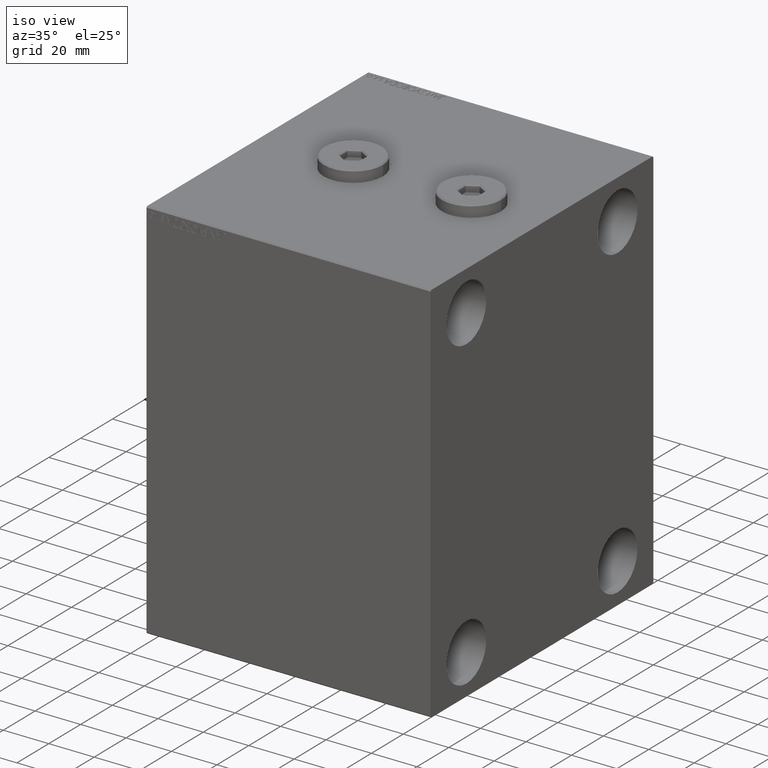
[diagram: clean part render]
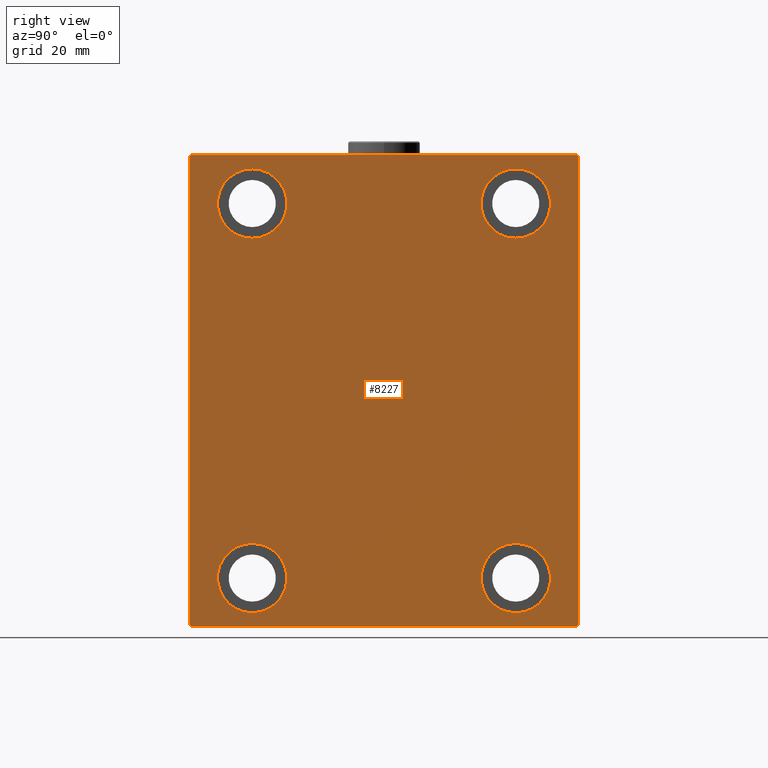
[diagram: tour spotlight — one face highlighted and labeled with its STEP entity id]
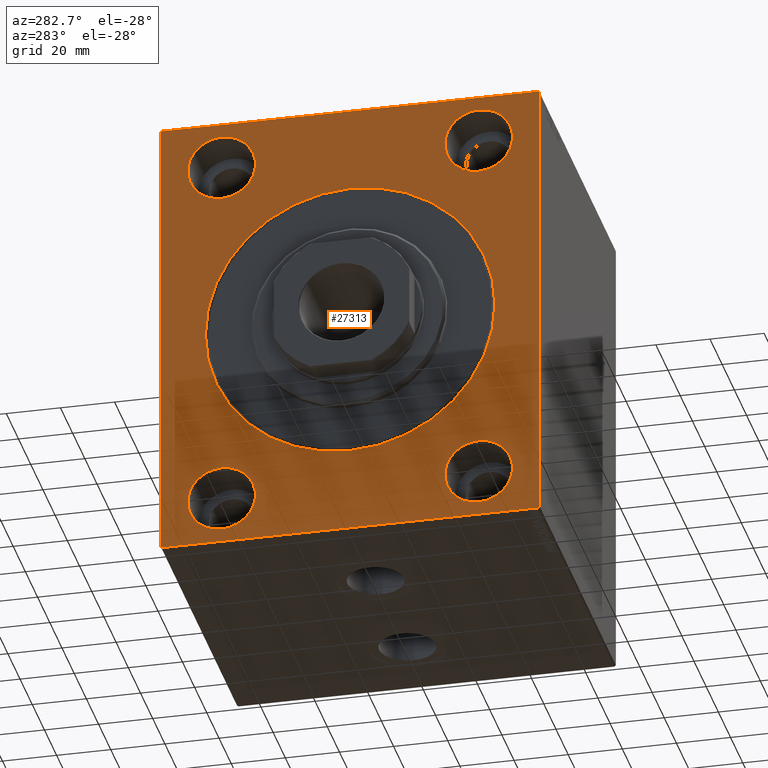
[diagram: tour spotlight — one face highlighted and labeled with its STEP entity id]
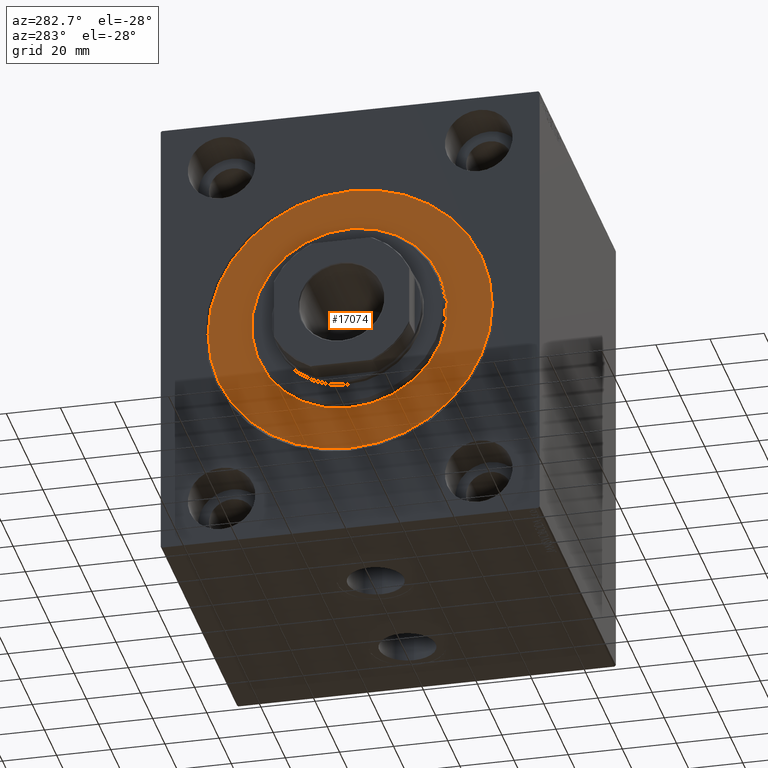
[diagram: tour spotlight — one face highlighted and labeled with its STEP entity id]
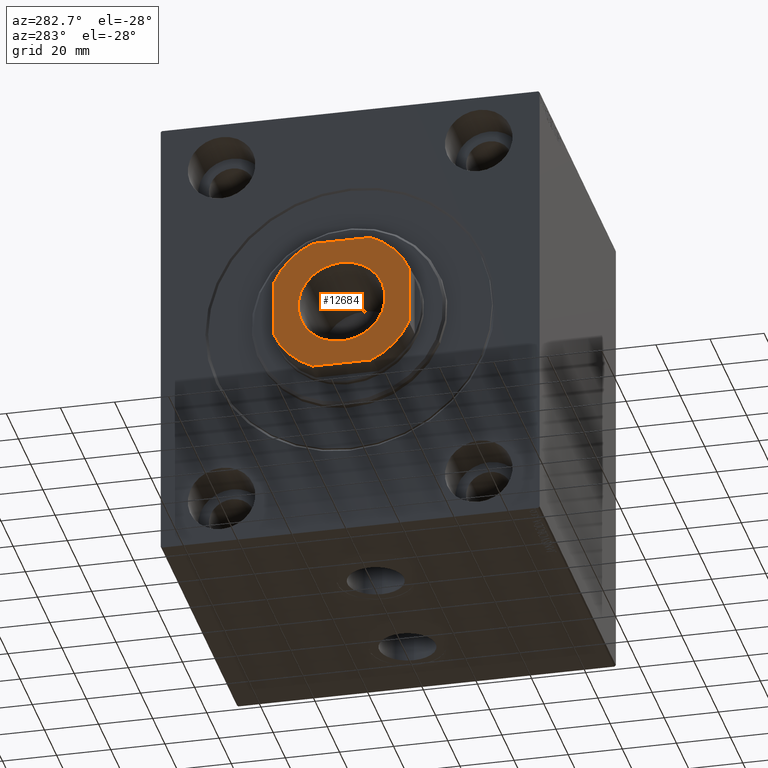
[diagram: tour spotlight — one face highlighted and labeled with its STEP entity id]
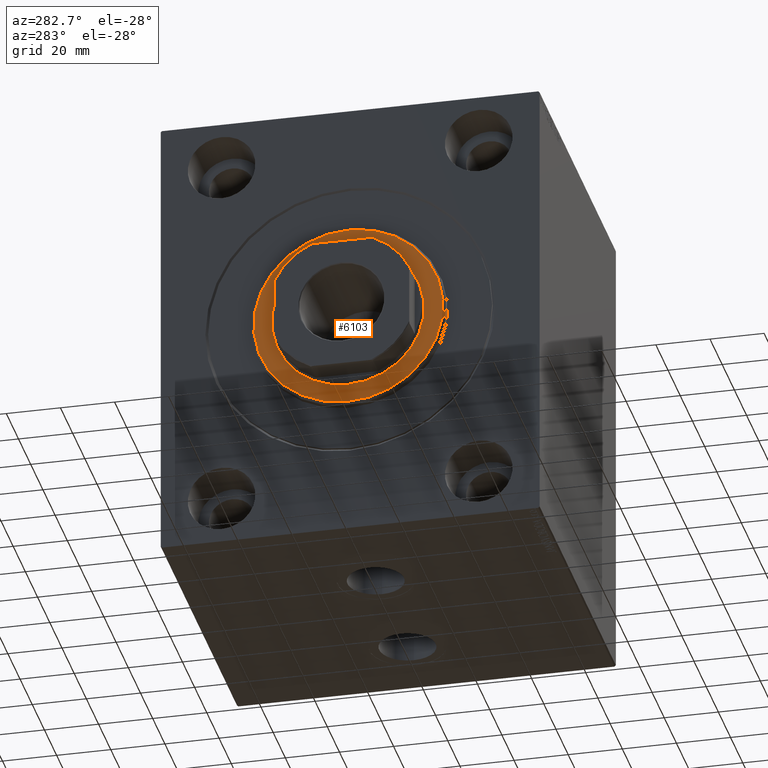
[diagram: tour spotlight — one face highlighted and labeled with its STEP entity id]
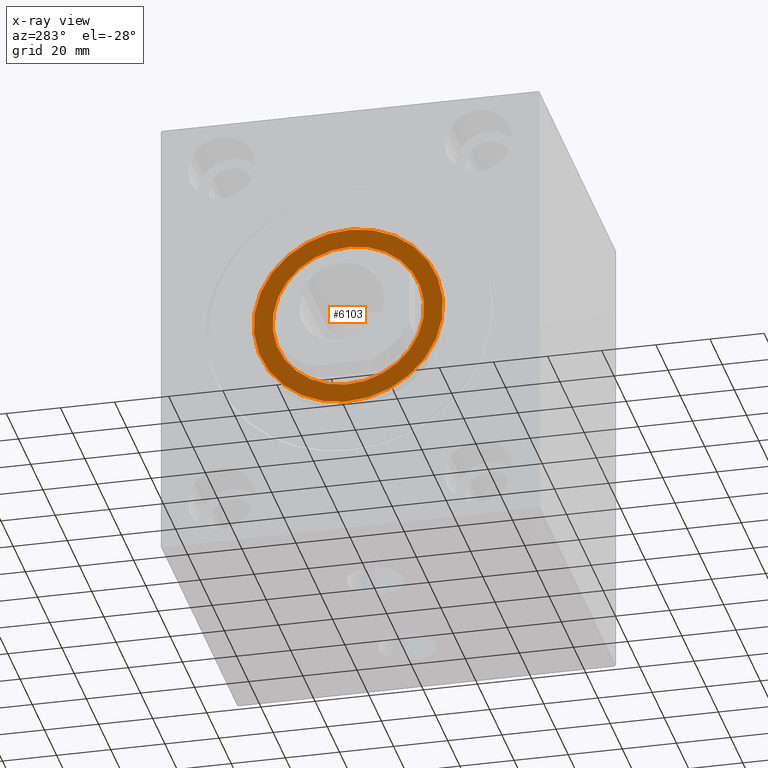
[diagram: x-ray of the same camera — body ghosted, this tour face saturated]
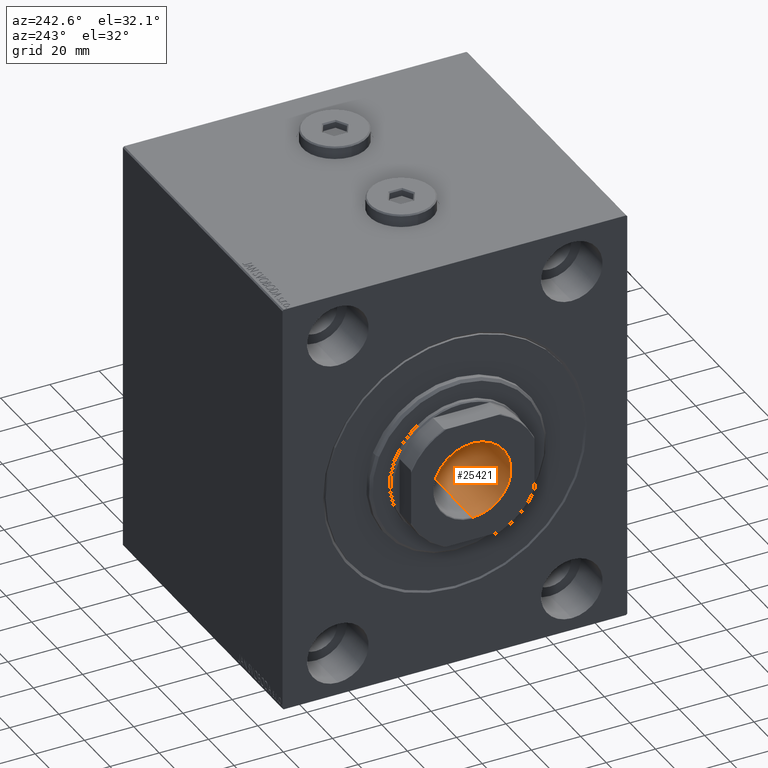
[diagram: tour spotlight — one face highlighted and labeled with its STEP entity id]
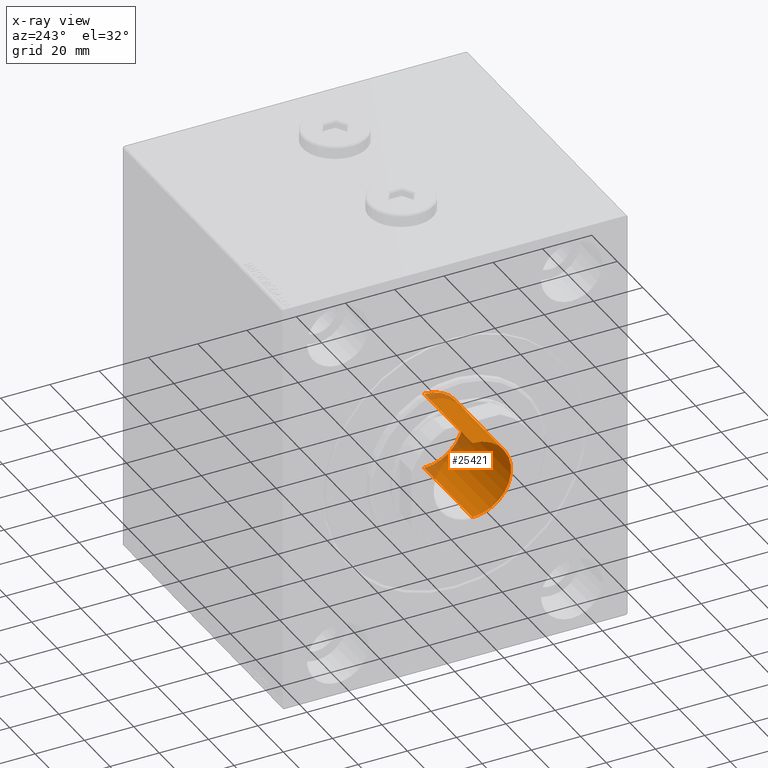
[diagram: x-ray of the same camera — body ghosted, this tour face saturated]
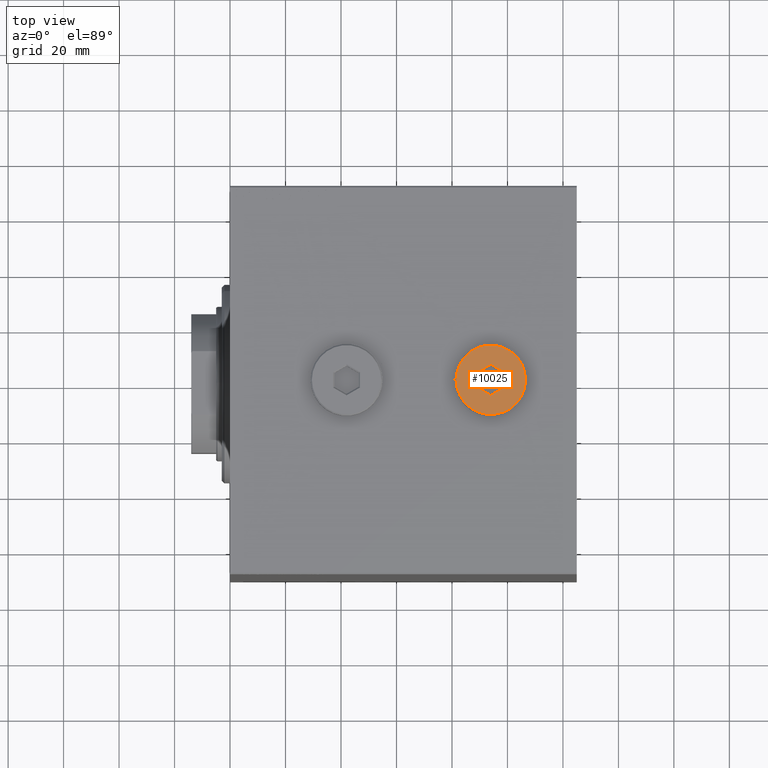
[diagram: tour spotlight — one face highlighted and labeled with its STEP entity id]
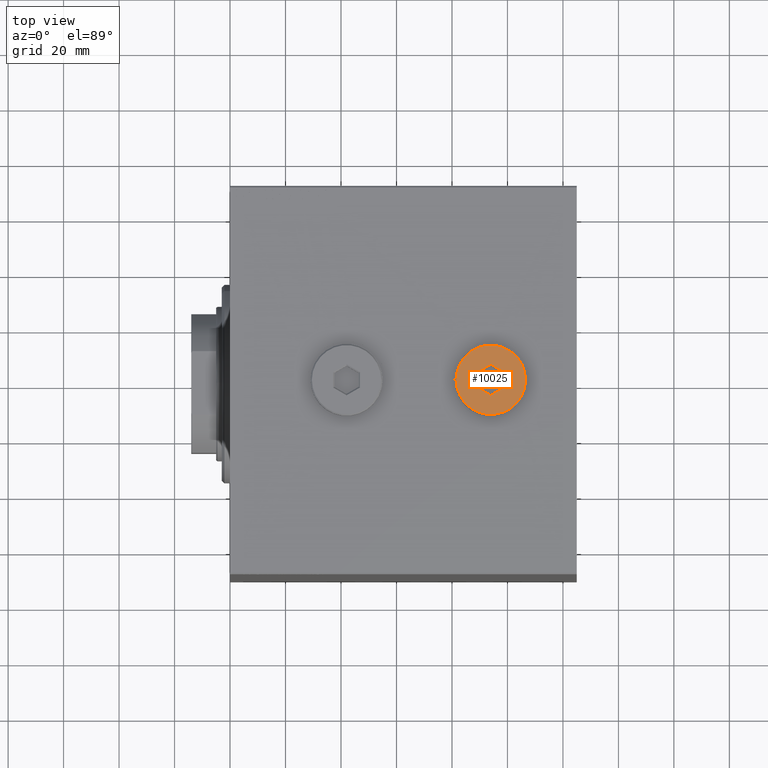
[diagram: tour spotlight — one face highlighted and labeled with its STEP entity id]
A machine part: a face-by-face anatomy tour. The part has 914 B-rep faces; the first image is the clean iso view, then the 8 largest visible faces are spotlighted one at a time (largest first), each with its STEP entity span.

Face 1 — right view, entity #8227. In plain terms, the highlighted planar face has unit normal (1, 0, 0).
Definition (entity closure, byte-faithful):
#392 = CARTESIAN_POINT ( 'NONE',  ( 125.0000000000000000, -69.49999999999997158, 84.99999999999998579 ) ) ;
#539 = VERTEX_POINT ( 'NONE', #41302 ) ;
#571 = LINE ( 'NONE', #24735, #28751 ) ;
#934 = DIRECTION ( 'NONE',  ( -1.000000000000000000, -0.000000000000000000, -0.000000000000000000 ) ) ;
#947 = VECTOR ( 'NONE', #9573, 1000.000000000000000 ) ;
#1116 = LINE ( 'NONE', #15694, #33653 ) ;
#1124 = FACE_BOUND ( 'NONE', #38769, .T. ) ;
#1731 = CARTESIAN_POINT ( 'NONE',  ( 125.0000000000000000, -69.99999999999998579, -84.49999999999998579 ) ) ;
#1791 = PLANE ( 'NONE',  #31138 ) ;
#2054 = CARTESIAN_POINT ( 'NONE',  ( 125.0000000000000000, 70.00000000000002842, -85.00000000000001421 ) ) ;
#2135 = EDGE_CURVE ( 'NONE', #19843, #34187, #2657, .T. ) ;
#2584 = CIRCLE ( 'NONE', #8406, 12.49999999999999645 ) ;
#2657 = CIRCLE ( 'NONE', #39751, 12.50000000000001066 ) ;
#3497 = DIRECTION ( 'NONE',  ( 0.000000000000000000, 0.000000000000000000, 1.000000000000000000 ) ) ;
#4364 = DIRECTION ( 'NONE',  ( 0.000000000000000000, 0.000000000000000000, -1.000000000000000000 ) ) ;
#4375 = CIRCLE ( 'NONE', #41483, 12.50000000000001066 ) ;
#4834 = VECTOR ( 'NONE', #43200, 1000.000000000000000 ) ;
#4846 = CARTESIAN_POINT ( 'NONE',  ( 125.0000000000000000, -47.49999999999997868, 80.00000000000001421 ) ) ;
#5664 = EDGE_CURVE ( 'NONE', #34188, #21856, #22932, .T. ) ;
#6146 = CARTESIAN_POINT ( 'NONE',  ( 125.0000000000000000, -69.99999999999998579, 84.49999999999995737 ) ) ;
#6433 = DIRECTION ( 'NONE',  ( -1.000000000000000000, -0.000000000000000000, -0.000000000000000000 ) ) ;
#6823 = LINE ( 'NONE', #34852, #12604 ) ;
#7505 = ORIENTED_EDGE ( 'NONE', *, *, #16717, .T. ) ;
#7579 = DIRECTION ( 'NONE',  ( -1.000000000000000000, -0.000000000000000000, -0.000000000000000000 ) ) ;
#7638 = DIRECTION ( 'NONE',  ( -1.000000000000000000, -0.000000000000000000, -0.000000000000000000 ) ) ;
#7782 = CARTESIAN_POINT ( 'NONE',  ( 125.0000000000000000, -69.99999999999998579, 84.99999999999998579 ) ) ;
#8040 = ORIENTED_EDGE ( 'NONE', *, *, #33116, .T. ) ;
#8215 = DIRECTION ( 'NONE',  ( 0.000000000000000000, 0.000000000000000000, 1.000000000000000000 ) ) ;
#8227 = ADVANCED_FACE ( 'NONE', ( #15704, #29603, #25511, #1124, #15478 ), #1791, .T. ) ;
#8406 = AXIS2_PLACEMENT_3D ( 'NONE', #18854, #25241, #28656 ) ;
#8756 = CARTESIAN_POINT ( 'NONE',  ( 125.0000000000000000, 69.49999999999998579, 85.00000000000000000 ) ) ;
#8990 = CIRCLE ( 'NONE', #27222, 12.50000000000001066 ) ;
#9477 = ORIENTED_EDGE ( 'NONE', *, *, #15933, .T. ) ;
#9507 = CARTESIAN_POINT ( 'NONE',  ( 125.0000000000000000, 70.00000000000002842, -84.50000000000004263 ) ) ;
#9521 = CARTESIAN_POINT ( 'NONE',  ( 125.0000000000000000, -47.49999999999997868, 55.00000000000000000 ) ) ;
#9573 = DIRECTION ( 'NONE',  ( 0.000000000000000000, -8.163404592832031500E-17, 1.000000000000000000 ) ) ;
#9625 = ORIENTED_EDGE ( 'NONE', *, *, #25785, .T. ) ;
#9677 = VECTOR ( 'NONE', #28082, 1000.000000000000000 ) ;
#10114 = LINE ( 'NONE', #24242, #11037 ) ;
#10156 = VERTEX_POINT ( 'NONE', #41441 ) ;
#11037 = VECTOR ( 'NONE', #11387, 1000.000000000000000 ) ;
#11191 = CARTESIAN_POINT ( 'NONE',  ( 125.0000000000000000, 47.50000000000000711, -80.00000000000000000 ) ) ;
#11273 = CARTESIAN_POINT ( 'NONE',  ( 125.0000000000000000, -47.49999999999997868, 67.50000000000000000 ) ) ;
#11387 = DIRECTION ( 'NONE',  ( 0.000000000000000000, -1.000000000000000000, -9.912705577010325549E-17 ) ) ;
#11424 = VERTEX_POINT ( 'NONE', #36358 ) ;
#11680 = CIRCLE ( 'NONE', #24776, 12.49999999999999645 ) ;
#12120 = VERTEX_POINT ( 'NONE', #11191 ) ;
#12604 = VECTOR ( 'NONE', #14324, 999.9999999999998863 ) ;
#12982 = CARTESIAN_POINT ( 'NONE',  ( 125.0000000000000000, -47.49999999999999289, -67.50000000000000000 ) ) ;
#13016 = DIRECTION ( 'NONE',  ( -1.000000000000000000, -0.000000000000000000, -0.000000000000000000 ) ) ;
#13116 = VERTEX_POINT ( 'NONE', #1731 ) ;
#13729 = LINE ( 'NONE', #34913, #9677 ) ;
#13893 = DIRECTION ( 'NONE',  ( 0.000000000000000000, 0.000000000000000000, 1.000000000000000000 ) ) ;
#13974 = VECTOR ( 'NONE', #4364, 1000.000000000000000 ) ;
#14130 = VERTEX_POINT ( 'NONE', #17685 ) ;
#14324 = DIRECTION ( 'NONE',  ( -0.000000000000000000, 0.7071067811865574537, -0.7071067811865376918 ) ) ;
#14399 = LINE ( 'NONE', #7782, #13974 ) ;
#14945 = EDGE_CURVE ( 'NONE', #22057, #539, #43623, .T. ) ;
#15013 = ORIENTED_EDGE ( 'NONE', *, *, #29614, .T. ) ;
#15478 = FACE_OUTER_BOUND ( 'NONE', #18709, .T. ) ;
#15694 = CARTESIAN_POINT ( 'NONE',  ( 125.0000000000000000, 77.24999999999714362, -77.25000000000356692 ) ) ;
#15704 = FACE_BOUND ( 'NONE', #19102, .T. ) ;
#15726 = ORIENTED_EDGE ( 'NONE', *, *, #14945, .T. ) ;
#15933 = EDGE_CURVE ( 'NONE', #539, #22057, #4375, .T. ) ;
#16717 = EDGE_CURVE ( 'NONE', #11424, #36984, #11680, .T. ) ;
#17279 = CARTESIAN_POINT ( 'NONE',  ( 125.0000000000000000, 70.00000000000001421, 84.49999999999995737 ) ) ;
#17413 = CARTESIAN_POINT ( 'NONE',  ( 125.0000000000000000, -47.49999999999999289, -67.50000000000000000 ) ) ;
#17685 = CARTESIAN_POINT ( 'NONE',  ( 125.0000000000000000, 47.50000000000000711, -55.00000000000000711 ) ) ;
#18709 = EDGE_LOOP ( 'NONE', ( #27873, #28528, #38377, #28687, #23590, #9625, #29875, #35413 ) ) ;
#18854 = CARTESIAN_POINT ( 'NONE',  ( 125.0000000000000000, 47.50000000000000711, -67.50000000000000000 ) ) ;
#18898 = DIRECTION ( 'NONE',  ( -0.000000000000000000, 0.7071067811865769936, 0.7071067811865181518 ) ) ;
#18923 = EDGE_CURVE ( 'NONE', #21856, #34241, #10114, .T. ) ;
#19102 = EDGE_LOOP ( 'NONE', ( #21187, #36249 ) ) ;
#19273 = ORIENTED_EDGE ( 'NONE', *, *, #2135, .T. ) ;
#19634 = CARTESIAN_POINT ( 'NONE',  ( 125.0000000000000000, 47.50000000000000711, 67.50000000000000000 ) ) ;
#19843 = VERTEX_POINT ( 'NONE', #4846 ) ;
#21187 = ORIENTED_EDGE ( 'NONE', *, *, #33808, .T. ) ;
#21377 = CIRCLE ( 'NONE', #33733, 12.49999999999999645 ) ;
#21856 = VERTEX_POINT ( 'NONE', #8756 ) ;
#22057 = VERTEX_POINT ( 'NONE', #40416 ) ;
#22760 = CARTESIAN_POINT ( 'NONE',  ( 125.0000000000000000, 0.000000000000000000, 0.000000000000000000 ) ) ;
#22932 = LINE ( 'NONE', #33418, #4834 ) ;
#23127 = CARTESIAN_POINT ( 'NONE',  ( 125.0000000000000000, 69.50000000000001421, -85.00000000000001421 ) ) ;
#23495 = DIRECTION ( 'NONE',  ( 0.000000000000000000, 0.000000000000000000, 1.000000000000000000 ) ) ;
#23585 = VERTEX_POINT ( 'NONE', #23127 ) ;
#23590 = ORIENTED_EDGE ( 'NONE', *, *, #27015, .T. ) ;
#23998 = AXIS2_PLACEMENT_3D ( 'NONE', #32478, #32036, #35672 ) ;
#24242 = CARTESIAN_POINT ( 'NONE',  ( 125.0000000000000000, 70.00000000000001421, 85.00000000000000000 ) ) ;
#24287 = CARTESIAN_POINT ( 'NONE',  ( 125.0000000000000000, -47.49999999999999289, -55.00000000000000711 ) ) ;
#24710 = EDGE_CURVE ( 'NONE', #38972, #13116, #14399, .T. ) ;
#24735 = CARTESIAN_POINT ( 'NONE',  ( 125.0000000000000000, -77.24999999999997158, 77.24999999999997158 ) ) ;
#24776 = AXIS2_PLACEMENT_3D ( 'NONE', #17413, #7579, #3497 ) ;
#25241 = DIRECTION ( 'NONE',  ( -1.000000000000000000, -0.000000000000000000, -0.000000000000000000 ) ) ;
#25511 = FACE_BOUND ( 'NONE', #32117, .T. ) ;
#25785 = EDGE_CURVE ( 'NONE', #23585, #39196, #1116, .T. ) ;
#26456 = LINE ( 'NONE', #2054, #947 ) ;
#26488 = CIRCLE ( 'NONE', #34498, 12.49999999999999645 ) ;
#27015 = EDGE_CURVE ( 'NONE', #10156, #23585, #13729, .T. ) ;
#27222 = AXIS2_PLACEMENT_3D ( 'NONE', #44686, #6433, #32931 ) ;
#27386 = EDGE_CURVE ( 'NONE', #39196, #34188, #26456, .T. ) ;
#27873 = ORIENTED_EDGE ( 'NONE', *, *, #18923, .T. ) ;
#28082 = DIRECTION ( 'NONE',  ( 0.000000000000000000, 1.000000000000000000, 9.912705577010325549E-17 ) ) ;
#28528 = ORIENTED_EDGE ( 'NONE', *, *, #36933, .T. ) ;
#28656 = DIRECTION ( 'NONE',  ( 0.000000000000000000, 0.000000000000000000, 1.000000000000000000 ) ) ;
#28687 = ORIENTED_EDGE ( 'NONE', *, *, #29986, .T. ) ;
#28751 = VECTOR ( 'NONE', #42477, 1000.000000000000114 ) ;
#28822 = DIRECTION ( 'NONE',  ( 0.000000000000000000, 0.000000000000000000, 1.000000000000000000 ) ) ;
#29378 = DIRECTION ( 'NONE',  ( 1.000000000000000000, 0.000000000000000000, 0.000000000000000000 ) ) ;
#29603 = FACE_BOUND ( 'NONE', #32337, .T. ) ;
#29614 = EDGE_CURVE ( 'NONE', #34187, #19843, #8990, .T. ) ;
#29875 = ORIENTED_EDGE ( 'NONE', *, *, #27386, .T. ) ;
#29986 = EDGE_CURVE ( 'NONE', #13116, #10156, #6823, .T. ) ;
#31138 = AXIS2_PLACEMENT_3D ( 'NONE', #22760, #29378, #36216 ) ;
#32036 = DIRECTION ( 'NONE',  ( -1.000000000000000000, -0.000000000000000000, -0.000000000000000000 ) ) ;
#32117 = EDGE_LOOP ( 'NONE', ( #9477, #15726 ) ) ;
#32337 = EDGE_LOOP ( 'NONE', ( #15013, #19273 ) ) ;
#32478 = CARTESIAN_POINT ( 'NONE',  ( 125.0000000000000000, 47.50000000000000711, 67.50000000000000000 ) ) ;
#32931 = DIRECTION ( 'NONE',  ( 0.000000000000000000, 0.000000000000000000, 1.000000000000000000 ) ) ;
#33116 = EDGE_CURVE ( 'NONE', #36984, #11424, #26488, .T. ) ;
#33418 = CARTESIAN_POINT ( 'NONE',  ( 125.0000000000000000, 77.25000000000096634, 77.24999999999883471 ) ) ;
#33653 = VECTOR ( 'NONE', #18898, 1000.000000000000000 ) ;
#33733 = AXIS2_PLACEMENT_3D ( 'NONE', #38380, #934, #8215 ) ;
#33808 = EDGE_CURVE ( 'NONE', #12120, #14130, #21377, .T. ) ;
#34187 = VERTEX_POINT ( 'NONE', #9521 ) ;
#34188 = VERTEX_POINT ( 'NONE', #17279 ) ;
#34241 = VERTEX_POINT ( 'NONE', #392 ) ;
#34498 = AXIS2_PLACEMENT_3D ( 'NONE', #12982, #37818, #13893 ) ;
#34852 = CARTESIAN_POINT ( 'NONE',  ( 125.0000000000000000, -77.24999999999901945, -77.25000000000116529 ) ) ;
#34913 = CARTESIAN_POINT ( 'NONE',  ( 125.0000000000000000, -69.99999999999998579, -85.00000000000002842 ) ) ;
#35413 = ORIENTED_EDGE ( 'NONE', *, *, #5664, .T. ) ;
#35672 = DIRECTION ( 'NONE',  ( 0.000000000000000000, 0.000000000000000000, 1.000000000000000000 ) ) ;
#36216 = DIRECTION ( 'NONE',  ( 0.000000000000000000, 0.000000000000000000, -1.000000000000000000 ) ) ;
#36249 = ORIENTED_EDGE ( 'NONE', *, *, #44668, .T. ) ;
#36358 = CARTESIAN_POINT ( 'NONE',  ( 125.0000000000000000, -47.49999999999999289, -80.00000000000000000 ) ) ;
#36933 = EDGE_CURVE ( 'NONE', #34241, #38972, #571, .T. ) ;
#36984 = VERTEX_POINT ( 'NONE', #24287 ) ;
#37818 = DIRECTION ( 'NONE',  ( -1.000000000000000000, -0.000000000000000000, -0.000000000000000000 ) ) ;
#38377 = ORIENTED_EDGE ( 'NONE', *, *, #24710, .T. ) ;
#38380 = CARTESIAN_POINT ( 'NONE',  ( 125.0000000000000000, 47.50000000000000711, -67.50000000000000000 ) ) ;
#38769 = EDGE_LOOP ( 'NONE', ( #7505, #8040 ) ) ;
#38972 = VERTEX_POINT ( 'NONE', #6146 ) ;
#39196 = VERTEX_POINT ( 'NONE', #9507 ) ;
#39751 = AXIS2_PLACEMENT_3D ( 'NONE', #11273, #7638, #28822 ) ;
#40416 = CARTESIAN_POINT ( 'NONE',  ( 125.0000000000000000, 47.50000000000000711, 80.00000000000001421 ) ) ;
#41302 = CARTESIAN_POINT ( 'NONE',  ( 125.0000000000000000, 47.50000000000000711, 55.00000000000000000 ) ) ;
#41441 = CARTESIAN_POINT ( 'NONE',  ( 125.0000000000000000, -69.49999999999994316, -85.00000000000002842 ) ) ;
#41483 = AXIS2_PLACEMENT_3D ( 'NONE', #19634, #13016, #23495 ) ;
#42477 = DIRECTION ( 'NONE',  ( 0.000000000000000000, -0.7071067811865474617, -0.7071067811865474617 ) ) ;
#43200 = DIRECTION ( 'NONE',  ( -0.000000000000000000, -0.7071067811865378028, 0.7071067811865573427 ) ) ;
#43623 = CIRCLE ( 'NONE', #23998, 12.50000000000001066 ) ;
#44668 = EDGE_CURVE ( 'NONE', #14130, #12120, #2584, .T. ) ;
#44686 = CARTESIAN_POINT ( 'NONE',  ( 125.0000000000000000, -47.49999999999997868, 67.50000000000000000 ) ) ;

Face 2 — auxiliary view, entity #27313. In plain terms, the highlighted planar face has unit normal (1, 0, 0).
Definition (entity closure, byte-faithful):
#186 = DIRECTION ( 'NONE',  ( 0.000000000000000000, 0.000000000000000000, 1.000000000000000000 ) ) ;
#1332 = ORIENTED_EDGE ( 'NONE', *, *, #39697, .F. ) ;
#1768 = ORIENTED_EDGE ( 'NONE', *, *, #7483, .T. ) ;
#1802 = CARTESIAN_POINT ( 'NONE',  ( 0.000000000000000000, 0.000000000000000000, 0.000000000000000000 ) ) ;
#2254 = LINE ( 'NONE', #23222, #30353 ) ;
#2346 = DIRECTION ( 'NONE',  ( 0.000000000000000000, -1.000000000000000000, -9.912705577010325549E-17 ) ) ;
#2638 = DIRECTION ( 'NONE',  ( 0.000000000000000000, 0.000000000000000000, 1.000000000000000000 ) ) ;
#3239 = ORIENTED_EDGE ( 'NONE', *, *, #3589, .F. ) ;
#3450 = CARTESIAN_POINT ( 'NONE',  ( 0.000000000000000000, 69.49999999999998579, 85.00000000000000000 ) ) ;
#3589 = EDGE_CURVE ( 'NONE', #42948, #6547, #31108, .T. ) ;
#3680 = ORIENTED_EDGE ( 'NONE', *, *, #43530, .T. ) ;
#3689 = EDGE_CURVE ( 'NONE', #14120, #43404, #42160, .T. ) ;
#3938 = CARTESIAN_POINT ( 'NONE',  ( 0.000000000000000000, 0.000000000000000000, 53.50000000000002842 ) ) ;
#4044 = EDGE_CURVE ( 'NONE', #6547, #42948, #26030, .T. ) ;
#4481 = CARTESIAN_POINT ( 'NONE',  ( 0.000000000000000000, -47.49999999999999289, -55.00000000000000711 ) ) ;
#4859 = EDGE_LOOP ( 'NONE', ( #33505, #3680, #29634, #8169, #31901, #1768, #1332, #23205 ) ) ;
#4980 = EDGE_LOOP ( 'NONE', ( #5761, #36768 ) ) ;
#5364 = DIRECTION ( 'NONE',  ( 0.000000000000000000, 0.000000000000000000, -1.000000000000000000 ) ) ;
#5476 = EDGE_CURVE ( 'NONE', #13269, #44370, #14300, .T. ) ;
#5532 = VERTEX_POINT ( 'NONE', #14975 ) ;
#5761 = ORIENTED_EDGE ( 'NONE', *, *, #36348, .F. ) ;
#5882 = EDGE_LOOP ( 'NONE', ( #20617, #16549 ) ) ;
#5936 = CIRCLE ( 'NONE', #9542, 12.49999999999999645 ) ;
#5943 = VERTEX_POINT ( 'NONE', #21316 ) ;
#6308 = AXIS2_PLACEMENT_3D ( 'NONE', #23664, #34828, #186 ) ;
#6547 = VERTEX_POINT ( 'NONE', #20434 ) ;
#6624 = EDGE_CURVE ( 'NONE', #14268, #5943, #28164, .T. ) ;
#6902 = CARTESIAN_POINT ( 'NONE',  ( 0.000000000000000000, -69.99999999999998579, -85.00000000000002842 ) ) ;
#7382 = EDGE_CURVE ( 'NONE', #12752, #16805, #41981, .T. ) ;
#7483 = EDGE_CURVE ( 'NONE', #5532, #11673, #2254, .T. ) ;
#7605 = CIRCLE ( 'NONE', #25079, 12.50000000000001066 ) ;
#7608 = CARTESIAN_POINT ( 'NONE',  ( 0.000000000000000000, 69.50000000000001421, -85.00000000000001421 ) ) ;
#7802 = AXIS2_PLACEMENT_3D ( 'NONE', #16917, #27393, #27165 ) ;
#7953 = CARTESIAN_POINT ( 'NONE',  ( 0.000000000000000000, -69.99999999999998579, 84.49999999999995737 ) ) ;
#8169 = ORIENTED_EDGE ( 'NONE', *, *, #3689, .T. ) ;
#8424 = DIRECTION ( 'NONE',  ( 0.000000000000000000, 0.000000000000000000, 1.000000000000000000 ) ) ;
#8515 = CARTESIAN_POINT ( 'NONE',  ( 0.000000000000000000, 70.00000000000001421, 85.00000000000000000 ) ) ;
#8626 = LINE ( 'NONE', #7953, #30257 ) ;
#8811 = CARTESIAN_POINT ( 'NONE',  ( 0.000000000000000000, 47.50000000000000711, -67.50000000000000000 ) ) ;
#8855 = DIRECTION ( 'NONE',  ( -0.000000000000000000, 0.7071067811865474617, 0.7071067811865474617 ) ) ;
#9035 = DIRECTION ( 'NONE',  ( -1.000000000000000000, 0.000000000000000000, 0.000000000000000000 ) ) ;
#9067 = VECTOR ( 'NONE', #37669, 1000.000000000000000 ) ;
#9542 = AXIS2_PLACEMENT_3D ( 'NONE', #13197, #17482, #27106 ) ;
#9985 = VECTOR ( 'NONE', #42711, 999.9999999999998863 ) ;
#10965 = VERTEX_POINT ( 'NONE', #34412 ) ;
#11173 = DIRECTION ( 'NONE',  ( -0.000000000000000000, 0.7071067811865378028, -0.7071067811865573427 ) ) ;
#11466 = EDGE_CURVE ( 'NONE', #16805, #12752, #19541, .T. ) ;
#11478 = CARTESIAN_POINT ( 'NONE',  ( 0.000000000000000000, 6.551860375438343048E-15, -53.50000000000002842 ) ) ;
#11673 = VERTEX_POINT ( 'NONE', #7608 ) ;
#12148 = DIRECTION ( 'NONE',  ( 0.000000000000000000, 0.000000000000000000, 1.000000000000000000 ) ) ;
#12533 = FACE_BOUND ( 'NONE', #15059, .T. ) ;
#12612 = CARTESIAN_POINT ( 'NONE',  ( 0.000000000000000000, -69.49999999999994316, -85.00000000000002842 ) ) ;
#12752 = VERTEX_POINT ( 'NONE', #11478 ) ;
#12799 = CIRCLE ( 'NONE', #39682, 12.49999999999999645 ) ;
#13197 = CARTESIAN_POINT ( 'NONE',  ( 0.000000000000000000, -47.49999999999999289, -67.50000000000000000 ) ) ;
#13269 = VERTEX_POINT ( 'NONE', #31964 ) ;
#13739 = VERTEX_POINT ( 'NONE', #17299 ) ;
#13757 = DIRECTION ( 'NONE',  ( 0.000000000000000000, -8.163404592832031500E-17, 1.000000000000000000 ) ) ;
#14072 = EDGE_CURVE ( 'NONE', #44370, #13269, #29811, .T. ) ;
#14120 = VERTEX_POINT ( 'NONE', #20653 ) ;
#14268 = VERTEX_POINT ( 'NONE', #12612 ) ;
#14300 = CIRCLE ( 'NONE', #6308, 12.49999999999999645 ) ;
#14587 = VECTOR ( 'NONE', #13757, 1000.000000000000000 ) ;
#14975 = CARTESIAN_POINT ( 'NONE',  ( 0.000000000000000000, 70.00000000000002842, -84.50000000000004263 ) ) ;
#15059 = EDGE_LOOP ( 'NONE', ( #24040, #23758 ) ) ;
#15267 = AXIS2_PLACEMENT_3D ( 'NONE', #8811, #9035, #2638 ) ;
#15966 = CARTESIAN_POINT ( 'NONE',  ( 0.000000000000000000, 0.000000000000000000, 0.000000000000000000 ) ) ;
#16549 = ORIENTED_EDGE ( 'NONE', *, *, #44261, .F. ) ;
#16639 = EDGE_CURVE ( 'NONE', #5532, #43404, #23327, .T. ) ;
#16699 = EDGE_LOOP ( 'NONE', ( #37259, #3239 ) ) ;
#16805 = VERTEX_POINT ( 'NONE', #3938 ) ;
#16885 = CIRCLE ( 'NONE', #32157, 12.50000000000001066 ) ;
#16917 = CARTESIAN_POINT ( 'NONE',  ( 0.000000000000000000, -47.49999999999997868, 67.50000000000000000 ) ) ;
#17033 = CARTESIAN_POINT ( 'NONE',  ( 0.000000000000000000, 47.50000000000000711, 67.50000000000000000 ) ) ;
#17244 = CARTESIAN_POINT ( 'NONE',  ( 0.000000000000000000, -69.99999999999998579, 84.99999999999998579 ) ) ;
#17299 = CARTESIAN_POINT ( 'NONE',  ( 0.000000000000000000, -47.49999999999999289, -80.00000000000000000 ) ) ;
#17352 = CARTESIAN_POINT ( 'NONE',  ( 0.000000000000000000, -47.49999999999999289, -67.50000000000000000 ) ) ;
#17482 = DIRECTION ( 'NONE',  ( -1.000000000000000000, 0.000000000000000000, 0.000000000000000000 ) ) ;
#19381 = DIRECTION ( 'NONE',  ( 0.000000000000000000, 0.000000000000000000, -1.000000000000000000 ) ) ;
#19541 = CIRCLE ( 'NONE', #29003, 53.50000000000002842 ) ;
#19609 = FACE_BOUND ( 'NONE', #5882, .T. ) ;
#19834 = FACE_BOUND ( 'NONE', #36942, .T. ) ;
#20434 = CARTESIAN_POINT ( 'NONE',  ( 0.000000000000000000, -47.49999999999997868, 80.00000000000001421 ) ) ;
#20465 = EDGE_CURVE ( 'NONE', #10965, #23091, #16885, .T. ) ;
#20495 = DIRECTION ( 'NONE',  ( 0.000000000000000000, -0.7071067811865769936, -0.7071067811865181518 ) ) ;
#20617 = ORIENTED_EDGE ( 'NONE', *, *, #23539, .F. ) ;
#20653 = CARTESIAN_POINT ( 'NONE',  ( 0.000000000000000000, 69.49999999999998579, 85.00000000000000000 ) ) ;
#20799 = ORIENTED_EDGE ( 'NONE', *, *, #5476, .F. ) ;
#20880 = DIRECTION ( 'NONE',  ( 0.000000000000000000, 0.000000000000000000, -1.000000000000000000 ) ) ;
#21242 = VERTEX_POINT ( 'NONE', #36917 ) ;
#21316 = CARTESIAN_POINT ( 'NONE',  ( 0.000000000000000000, -69.99999999999998579, -84.49999999999998579 ) ) ;
#21425 = DIRECTION ( 'NONE',  ( -1.000000000000000000, 0.000000000000000000, 0.000000000000000000 ) ) ;
#22051 = DIRECTION ( 'NONE',  ( -1.000000000000000000, 0.000000000000000000, 0.000000000000000000 ) ) ;
#22060 = AXIS2_PLACEMENT_3D ( 'NONE', #15966, #40325, #19381 ) ;
#22181 = CARTESIAN_POINT ( 'NONE',  ( 0.000000000000000000, -69.99999999999998579, 84.49999999999995737 ) ) ;
#22609 = CARTESIAN_POINT ( 'NONE',  ( 0.000000000000000000, 47.50000000000000711, 80.00000000000001421 ) ) ;
#23091 = VERTEX_POINT ( 'NONE', #22609 ) ;
#23205 = ORIENTED_EDGE ( 'NONE', *, *, #6624, .T. ) ;
#23222 = CARTESIAN_POINT ( 'NONE',  ( 0.000000000000000000, 70.00000000000002842, -84.50000000000004263 ) ) ;
#23327 = LINE ( 'NONE', #31083, #14587 ) ;
#23539 = EDGE_CURVE ( 'NONE', #24951, #13739, #5936, .T. ) ;
#23664 = CARTESIAN_POINT ( 'NONE',  ( 0.000000000000000000, 47.50000000000000711, -67.50000000000000000 ) ) ;
#23758 = ORIENTED_EDGE ( 'NONE', *, *, #7382, .T. ) ;
#23769 = LINE ( 'NONE', #6902, #9067 ) ;
#23809 = AXIS2_PLACEMENT_3D ( 'NONE', #1802, #39620, #39845 ) ;
#24040 = ORIENTED_EDGE ( 'NONE', *, *, #11466, .T. ) ;
#24951 = VERTEX_POINT ( 'NONE', #4481 ) ;
#25079 = AXIS2_PLACEMENT_3D ( 'NONE', #42910, #28805, #12148 ) ;
#25609 = CARTESIAN_POINT ( 'NONE',  ( 0.000000000000000000, -47.49999999999997868, 55.00000000000000000 ) ) ;
#25656 = CARTESIAN_POINT ( 'NONE',  ( 0.000000000000000000, 0.000000000000000000, 0.000000000000000000 ) ) ;
#26030 = CIRCLE ( 'NONE', #37667, 12.50000000000001066 ) ;
#27106 = DIRECTION ( 'NONE',  ( 0.000000000000000000, 0.000000000000000000, 1.000000000000000000 ) ) ;
#27165 = DIRECTION ( 'NONE',  ( 0.000000000000000000, 0.000000000000000000, 1.000000000000000000 ) ) ;
#27313 = ADVANCED_FACE ( 'NONE', ( #12533, #19834, #30326, #29639, #19609, #43514 ), #39866, .F. ) ;
#27393 = DIRECTION ( 'NONE',  ( -1.000000000000000000, 0.000000000000000000, 0.000000000000000000 ) ) ;
#28041 = CARTESIAN_POINT ( 'NONE',  ( 0.000000000000000000, 70.00000000000001421, 84.49999999999995737 ) ) ;
#28164 = LINE ( 'NONE', #42048, #9985 ) ;
#28805 = DIRECTION ( 'NONE',  ( -1.000000000000000000, 0.000000000000000000, 0.000000000000000000 ) ) ;
#29003 = AXIS2_PLACEMENT_3D ( 'NONE', #25656, #32719, #5364 ) ;
#29486 = LINE ( 'NONE', #8515, #30908 ) ;
#29634 = ORIENTED_EDGE ( 'NONE', *, *, #40268, .F. ) ;
#29639 = FACE_BOUND ( 'NONE', #4980, .T. ) ;
#29811 = CIRCLE ( 'NONE', #15267, 12.49999999999999645 ) ;
#30257 = VECTOR ( 'NONE', #8855, 1000.000000000000114 ) ;
#30326 = FACE_BOUND ( 'NONE', #16699, .T. ) ;
#30353 = VECTOR ( 'NONE', #20495, 1000.000000000000000 ) ;
#30908 = VECTOR ( 'NONE', #2346, 1000.000000000000000 ) ;
#30928 = DIRECTION ( 'NONE',  ( -1.000000000000000000, 0.000000000000000000, 0.000000000000000000 ) ) ;
#31036 = VECTOR ( 'NONE', #20880, 1000.000000000000000 ) ;
#31083 = CARTESIAN_POINT ( 'NONE',  ( 0.000000000000000000, 70.00000000000002842, -85.00000000000001421 ) ) ;
#31108 = CIRCLE ( 'NONE', #7802, 12.50000000000001066 ) ;
#31141 = LINE ( 'NONE', #17244, #31036 ) ;
#31709 = VERTEX_POINT ( 'NONE', #22181 ) ;
#31901 = ORIENTED_EDGE ( 'NONE', *, *, #16639, .F. ) ;
#31964 = CARTESIAN_POINT ( 'NONE',  ( 0.000000000000000000, 47.50000000000000711, -80.00000000000000000 ) ) ;
#32157 = AXIS2_PLACEMENT_3D ( 'NONE', #17033, #30928, #8424 ) ;
#32719 = DIRECTION ( 'NONE',  ( 1.000000000000000000, 0.000000000000000000, 0.000000000000000000 ) ) ;
#33505 = ORIENTED_EDGE ( 'NONE', *, *, #44776, .F. ) ;
#33611 = ORIENTED_EDGE ( 'NONE', *, *, #14072, .F. ) ;
#34412 = CARTESIAN_POINT ( 'NONE',  ( 0.000000000000000000, 47.50000000000000711, 55.00000000000000000 ) ) ;
#34828 = DIRECTION ( 'NONE',  ( -1.000000000000000000, 0.000000000000000000, 0.000000000000000000 ) ) ;
#36348 = EDGE_CURVE ( 'NONE', #23091, #10965, #7605, .T. ) ;
#36768 = ORIENTED_EDGE ( 'NONE', *, *, #20465, .F. ) ;
#36917 = CARTESIAN_POINT ( 'NONE',  ( 0.000000000000000000, -69.49999999999997158, 84.99999999999998579 ) ) ;
#36942 = EDGE_LOOP ( 'NONE', ( #33611, #20799 ) ) ;
#37259 = ORIENTED_EDGE ( 'NONE', *, *, #4044, .F. ) ;
#37667 = AXIS2_PLACEMENT_3D ( 'NONE', #40024, #22051, #39130 ) ;
#37669 = DIRECTION ( 'NONE',  ( 0.000000000000000000, 1.000000000000000000, 9.912705577010325549E-17 ) ) ;
#38503 = CARTESIAN_POINT ( 'NONE',  ( 0.000000000000000000, 47.50000000000000711, -55.00000000000000711 ) ) ;
#38721 = DIRECTION ( 'NONE',  ( 0.000000000000000000, 0.000000000000000000, 1.000000000000000000 ) ) ;
#39130 = DIRECTION ( 'NONE',  ( 0.000000000000000000, 0.000000000000000000, 1.000000000000000000 ) ) ;
#39620 = DIRECTION ( 'NONE',  ( 1.000000000000000000, 0.000000000000000000, 0.000000000000000000 ) ) ;
#39682 = AXIS2_PLACEMENT_3D ( 'NONE', #17352, #21425, #38721 ) ;
#39697 = EDGE_CURVE ( 'NONE', #14268, #11673, #23769, .T. ) ;
#39845 = DIRECTION ( 'NONE',  ( 0.000000000000000000, 0.000000000000000000, -1.000000000000000000 ) ) ;
#39866 = PLANE ( 'NONE',  #22060 ) ;
#40024 = CARTESIAN_POINT ( 'NONE',  ( 0.000000000000000000, -47.49999999999997868, 67.50000000000000000 ) ) ;
#40268 = EDGE_CURVE ( 'NONE', #14120, #21242, #29486, .T. ) ;
#40325 = DIRECTION ( 'NONE',  ( 1.000000000000000000, 0.000000000000000000, 0.000000000000000000 ) ) ;
#40543 = VECTOR ( 'NONE', #11173, 1000.000000000000000 ) ;
#41981 = CIRCLE ( 'NONE', #23809, 53.50000000000002842 ) ;
#42048 = CARTESIAN_POINT ( 'NONE',  ( 0.000000000000000000, -69.49999999999994316, -85.00000000000002842 ) ) ;
#42160 = LINE ( 'NONE', #3450, #40543 ) ;
#42711 = DIRECTION ( 'NONE',  ( -0.000000000000000000, -0.7071067811865574537, 0.7071067811865376918 ) ) ;
#42910 = CARTESIAN_POINT ( 'NONE',  ( 0.000000000000000000, 47.50000000000000711, 67.50000000000000000 ) ) ;
#42948 = VERTEX_POINT ( 'NONE', #25609 ) ;
#43404 = VERTEX_POINT ( 'NONE', #28041 ) ;
#43514 = FACE_OUTER_BOUND ( 'NONE', #4859, .T. ) ;
#43530 = EDGE_CURVE ( 'NONE', #31709, #21242, #8626, .T. ) ;
#44261 = EDGE_CURVE ( 'NONE', #13739, #24951, #12799, .T. ) ;
#44370 = VERTEX_POINT ( 'NONE', #38503 ) ;
#44776 = EDGE_CURVE ( 'NONE', #31709, #5943, #31141, .T. ) ;

Face 3 — auxiliary view, entity #17074. In plain terms, the highlighted planar face has unit normal (1, 0, -0).
Definition (entity closure, byte-faithful):
#1127 = CARTESIAN_POINT ( 'NONE',  ( 0.000000000000000000, 0.000000000000000000, 36.00000000000000000 ) ) ;
#2003 = ORIENTED_EDGE ( 'NONE', *, *, #7188, .F. ) ;
#3666 = CARTESIAN_POINT ( 'NONE',  ( 0.000000000000000000, 0.000000000000000000, 0.000000000000000000 ) ) ;
#4049 = DIRECTION ( 'NONE',  ( 0.000000000000000000, 0.000000000000000000, -1.000000000000000000 ) ) ;
#6509 = VERTEX_POINT ( 'NONE', #1127 ) ;
#7188 = EDGE_CURVE ( 'NONE', #8669, #20054, #44903, .T. ) ;
#7671 = DIRECTION ( 'NONE',  ( 1.000000000000000000, -0.000000000000000000, 0.000000000000000000 ) ) ;
#8669 = VERTEX_POINT ( 'NONE', #14479 ) ;
#13382 = ORIENTED_EDGE ( 'NONE', *, *, #27724, .F. ) ;
#14479 = CARTESIAN_POINT ( 'NONE',  ( 0.000000000000000000, 0.000000000000000000, -52.49999999999999289 ) ) ;
#17074 = ADVANCED_FACE ( 'NONE', ( #37850, #37629 ), #20320, .F. ) ;
#18706 = CARTESIAN_POINT ( 'NONE',  ( 0.000000000000000000, 4.408728476930470856E-15, -36.00000000000000000 ) ) ;
#20054 = VERTEX_POINT ( 'NONE', #28064 ) ;
#20320 = PLANE ( 'NONE',  #30607 ) ;
#20517 = EDGE_LOOP ( 'NONE', ( #31664, #13382 ) ) ;
#21548 = EDGE_CURVE ( 'NONE', #6509, #38928, #33554, .T. ) ;
#21820 = DIRECTION ( 'NONE',  ( 1.000000000000000000, -0.000000000000000000, 0.000000000000000000 ) ) ;
#22715 = EDGE_CURVE ( 'NONE', #20054, #8669, #27772, .T. ) ;
#23398 = AXIS2_PLACEMENT_3D ( 'NONE', #24753, #38629, #28391 ) ;
#24091 = AXIS2_PLACEMENT_3D ( 'NONE', #28436, #21820, #4049 ) ;
#24753 = CARTESIAN_POINT ( 'NONE',  ( 0.000000000000000000, 0.000000000000000000, 0.000000000000000000 ) ) ;
#25081 = DIRECTION ( 'NONE',  ( 0.000000000000000000, 0.000000000000000000, 1.000000000000000000 ) ) ;
#26485 = CARTESIAN_POINT ( 'NONE',  ( 0.000000000000000000, 0.000000000000000000, 0.000000000000000000 ) ) ;
#27724 = EDGE_CURVE ( 'NONE', #38928, #6509, #37355, .T. ) ;
#27772 = CIRCLE ( 'NONE', #23398, 52.49999999999999289 ) ;
#28064 = CARTESIAN_POINT ( 'NONE',  ( 0.000000000000000000, 6.429395695523603167E-15, 52.49999999999999289 ) ) ;
#28391 = DIRECTION ( 'NONE',  ( 0.000000000000000000, 0.000000000000000000, 1.000000000000000000 ) ) ;
#28436 = CARTESIAN_POINT ( 'NONE',  ( 0.000000000000000000, 0.000000000000000000, 0.000000000000000000 ) ) ;
#28679 = ORIENTED_EDGE ( 'NONE', *, *, #22715, .F. ) ;
#28718 = DIRECTION ( 'NONE',  ( -1.000000000000000000, 0.000000000000000000, 0.000000000000000000 ) ) ;
#30607 = AXIS2_PLACEMENT_3D ( 'NONE', #26485, #36960, #44444 ) ;
#31664 = ORIENTED_EDGE ( 'NONE', *, *, #21548, .F. ) ;
#33554 = CIRCLE ( 'NONE', #24091, 36.00000000000000000 ) ;
#35475 = DIRECTION ( 'NONE',  ( 0.000000000000000000, 0.000000000000000000, -1.000000000000000000 ) ) ;
#36025 = EDGE_LOOP ( 'NONE', ( #2003, #28679 ) ) ;
#36908 = AXIS2_PLACEMENT_3D ( 'NONE', #3666, #28718, #25081 ) ;
#36960 = DIRECTION ( 'NONE',  ( -1.000000000000000000, 0.000000000000000000, 0.000000000000000000 ) ) ;
#37355 = CIRCLE ( 'NONE', #40983, 36.00000000000000000 ) ;
#37629 = FACE_OUTER_BOUND ( 'NONE', #36025, .T. ) ;
#37850 = FACE_BOUND ( 'NONE', #20517, .T. ) ;
#38629 = DIRECTION ( 'NONE',  ( -1.000000000000000000, 0.000000000000000000, 0.000000000000000000 ) ) ;
#38872 = CARTESIAN_POINT ( 'NONE',  ( 0.000000000000000000, 0.000000000000000000, 0.000000000000000000 ) ) ;
#38928 = VERTEX_POINT ( 'NONE', #18706 ) ;
#40983 = AXIS2_PLACEMENT_3D ( 'NONE', #38872, #7671, #35475 ) ;
#44444 = DIRECTION ( 'NONE',  ( 0.000000000000000000, 0.000000000000000000, 1.000000000000000000 ) ) ;
#44903 = CIRCLE ( 'NONE', #36908, 52.49999999999999289 ) ;

Face 4 — auxiliary view, entity #12684. In plain terms, the highlighted planar face has unit normal (-1, 0, 0).
Definition (entity closure, byte-faithful):
#1211 = CARTESIAN_POINT ( 'NONE',  ( 0.000000000000000000, 0.000000000000000000, 64.99999999999998579 ) ) ;
#1492 = DIRECTION ( 'NONE',  ( 0.000000000000000000, -0.000000000000000000, -1.000000000000000000 ) ) ;
#1688 = LINE ( 'NONE', #11720, #25548 ) ;
#1689 = CARTESIAN_POINT ( 'NONE',  ( 0.000000000000000000, 0.000000000000000000, 64.99999999999998579 ) ) ;
#1949 = CARTESIAN_POINT ( 'NONE',  ( 0.000000000000000000, 0.000000000000000000, 64.99999999999998579 ) ) ;
#2311 = CIRCLE ( 'NONE', #35054, 27.20000000000002416 ) ;
#2630 = ORIENTED_EDGE ( 'NONE', *, *, #37858, .T. ) ;
#3415 = CARTESIAN_POINT ( 'NONE',  ( 10.71634265969508704, -24.99999999999999289, 64.99999999999998579 ) ) ;
#4451 = CARTESIAN_POINT ( 'NONE',  ( -16.04999999999996874, 1.965558112631497866E-15, 64.99999999999998579 ) ) ;
#4559 = CARTESIAN_POINT ( 'NONE',  ( 16.04999999999996874, 0.000000000000000000, 64.99999999999998579 ) ) ;
#4681 = AXIS2_PLACEMENT_3D ( 'NONE', #39720, #16500, #36776 ) ;
#5342 = DIRECTION ( 'NONE',  ( 1.000000000000000000, 0.000000000000000000, 0.000000000000000000 ) ) ;
#6331 = VERTEX_POINT ( 'NONE', #30121 ) ;
#6516 = ORIENTED_EDGE ( 'NONE', *, *, #10453, .T. ) ;
#6655 = ORIENTED_EDGE ( 'NONE', *, *, #16680, .T. ) ;
#6802 = CARTESIAN_POINT ( 'NONE',  ( 0.000000000000000000, 0.000000000000000000, 64.99999999999998579 ) ) ;
#7168 = VERTEX_POINT ( 'NONE', #4559 ) ;
#8743 = EDGE_CURVE ( 'NONE', #35176, #11677, #11464, .T. ) ;
#8987 = DIRECTION ( 'NONE',  ( -0.000000000000000000, 0.000000000000000000, 1.000000000000000000 ) ) ;
#9609 = CIRCLE ( 'NONE', #31450, 16.04999999999996874 ) ;
#9733 = LINE ( 'NONE', #33895, #21719 ) ;
#10453 = EDGE_CURVE ( 'NONE', #6331, #13271, #9733, .T. ) ;
#11464 = CIRCLE ( 'NONE', #42746, 27.20000000000001350 ) ;
#11677 = VERTEX_POINT ( 'NONE', #17439 ) ;
#11720 = CARTESIAN_POINT ( 'NONE',  ( -24.99999999999999289, -25.00000000000000000, 64.99999999999998579 ) ) ;
#12684 = ADVANCED_FACE ( 'NONE', ( #31782, #28360 ), #38816, .T. ) ;
#12690 = DIRECTION ( 'NONE',  ( -1.000000000000000000, -6.938893903907228378E-17, -0.000000000000000000 ) ) ;
#13271 = VERTEX_POINT ( 'NONE', #35155 ) ;
#14999 = VERTEX_POINT ( 'NONE', #4451 ) ;
#15097 = LINE ( 'NONE', #29448, #16399 ) ;
#16399 = VECTOR ( 'NONE', #35831, 1000.000000000000000 ) ;
#16500 = DIRECTION ( 'NONE',  ( -0.000000000000000000, 0.000000000000000000, 1.000000000000000000 ) ) ;
#16680 = EDGE_CURVE ( 'NONE', #11677, #20062, #35162, .T. ) ;
#17439 = CARTESIAN_POINT ( 'NONE',  ( 25.00000000000000000, -10.71634265969507638, 64.99999999999998579 ) ) ;
#17726 = CIRCLE ( 'NONE', #29352, 16.04999999999996874 ) ;
#17947 = ORIENTED_EDGE ( 'NONE', *, *, #8743, .T. ) ;
#18118 = DIRECTION ( 'NONE',  ( -0.000000000000000000, 0.000000000000000000, 1.000000000000000000 ) ) ;
#18375 = VERTEX_POINT ( 'NONE', #34119 ) ;
#19428 = ORIENTED_EDGE ( 'NONE', *, *, #41078, .T. ) ;
#20062 = VERTEX_POINT ( 'NONE', #34005 ) ;
#20572 = ORIENTED_EDGE ( 'NONE', *, *, #27784, .T. ) ;
#21521 = CARTESIAN_POINT ( 'NONE',  ( 0.000000000000000000, 0.000000000000000000, 64.99999999999998579 ) ) ;
#21719 = VECTOR ( 'NONE', #12690, 1000.000000000000000 ) ;
#21921 = EDGE_CURVE ( 'NONE', #33230, #35176, #1688, .T. ) ;
#22077 = DIRECTION ( 'NONE',  ( -0.000000000000000000, 0.000000000000000000, 1.000000000000000000 ) ) ;
#22851 = DIRECTION ( 'NONE',  ( 0.000000000000000000, -0.000000000000000000, -1.000000000000000000 ) ) ;
#23145 = DIRECTION ( 'NONE',  ( 1.000000000000000000, 0.000000000000000000, 0.000000000000000000 ) ) ;
#24181 = EDGE_CURVE ( 'NONE', #20062, #6331, #2311, .T. ) ;
#24429 = EDGE_CURVE ( 'NONE', #7168, #14999, #9609, .T. ) ;
#24547 = ORIENTED_EDGE ( 'NONE', *, *, #25813, .T. ) ;
#25548 = VECTOR ( 'NONE', #39502, 1000.000000000000000 ) ;
#25813 = EDGE_CURVE ( 'NONE', #13271, #18375, #30007, .T. ) ;
#25891 = CARTESIAN_POINT ( 'NONE',  ( -24.99999999999999645, -10.71634265969507460, 64.99999999999998579 ) ) ;
#26247 = VECTOR ( 'NONE', #31304, 1000.000000000000000 ) ;
#27550 = DIRECTION ( 'NONE',  ( 1.000000000000000000, 0.000000000000000000, 0.000000000000000000 ) ) ;
#27768 = DIRECTION ( 'NONE',  ( -0.000000000000000000, 0.000000000000000000, 1.000000000000000000 ) ) ;
#27784 = EDGE_CURVE ( 'NONE', #14999, #7168, #17726, .T. ) ;
#28109 = CARTESIAN_POINT ( 'NONE',  ( 24.99999999999999645, 25.00000000000000355, 64.99999999999998579 ) ) ;
#28324 = AXIS2_PLACEMENT_3D ( 'NONE', #21521, #18118, #32010 ) ;
#28360 = FACE_OUTER_BOUND ( 'NONE', #39430, .T. ) ;
#28924 = CARTESIAN_POINT ( 'NONE',  ( 0.000000000000000000, 0.000000000000000000, 64.99999999999998579 ) ) ;
#29352 = AXIS2_PLACEMENT_3D ( 'NONE', #1949, #1492, #23145 ) ;
#29448 = CARTESIAN_POINT ( 'NONE',  ( -25.00000000000000355, 25.00000000000000000, 64.99999999999998579 ) ) ;
#30007 = CIRCLE ( 'NONE', #32187, 27.19999999999999574 ) ;
#30121 = CARTESIAN_POINT ( 'NONE',  ( 10.71634265969509769, 25.00000000000000355, 64.99999999999998579 ) ) ;
#31304 = DIRECTION ( 'NONE',  ( -6.938893903907228378E-17, 1.000000000000000000, -0.000000000000000000 ) ) ;
#31395 = VERTEX_POINT ( 'NONE', #25891 ) ;
#31450 = AXIS2_PLACEMENT_3D ( 'NONE', #1211, #22851, #36757 ) ;
#31782 = FACE_BOUND ( 'NONE', #43805, .T. ) ;
#32010 = DIRECTION ( 'NONE',  ( 1.000000000000000000, 0.000000000000000000, 0.000000000000000000 ) ) ;
#32187 = AXIS2_PLACEMENT_3D ( 'NONE', #28924, #22077, #33013 ) ;
#33013 = DIRECTION ( 'NONE',  ( 1.000000000000000000, 0.000000000000000000, 0.000000000000000000 ) ) ;
#33230 = VERTEX_POINT ( 'NONE', #42122 ) ;
#33895 = CARTESIAN_POINT ( 'NONE',  ( -25.00000000000000355, 25.00000000000000000, 64.99999999999998579 ) ) ;
#34005 = CARTESIAN_POINT ( 'NONE',  ( 25.00000000000000000, 10.71634265969510658, 64.99999999999998579 ) ) ;
#34119 = CARTESIAN_POINT ( 'NONE',  ( -25.00000000000000000, 10.71634265969503730, 64.99999999999998579 ) ) ;
#34773 = ORIENTED_EDGE ( 'NONE', *, *, #24429, .T. ) ;
#35054 = AXIS2_PLACEMENT_3D ( 'NONE', #6802, #27768, #27550 ) ;
#35155 = CARTESIAN_POINT ( 'NONE',  ( -10.71634265969503019, 25.00000000000000355, 64.99999999999998579 ) ) ;
#35162 = LINE ( 'NONE', #28109, #26247 ) ;
#35176 = VERTEX_POINT ( 'NONE', #3415 ) ;
#35831 = DIRECTION ( 'NONE',  ( 2.081668171172168513E-16, -1.000000000000000000, 0.000000000000000000 ) ) ;
#36757 = DIRECTION ( 'NONE',  ( 1.000000000000000000, 0.000000000000000000, 0.000000000000000000 ) ) ;
#36776 = DIRECTION ( 'NONE',  ( 1.000000000000000000, 0.000000000000000000, 0.000000000000000000 ) ) ;
#36994 = ORIENTED_EDGE ( 'NONE', *, *, #21921, .T. ) ;
#37858 = EDGE_CURVE ( 'NONE', #18375, #31395, #15097, .T. ) ;
#38146 = CIRCLE ( 'NONE', #4681, 27.20000000000000995 ) ;
#38816 = PLANE ( 'NONE',  #28324 ) ;
#39430 = EDGE_LOOP ( 'NONE', ( #6655, #43585, #6516, #24547, #2630, #19428, #36994, #17947 ) ) ;
#39502 = DIRECTION ( 'NONE',  ( 1.000000000000000000, 0.000000000000000000, 0.000000000000000000 ) ) ;
#39720 = CARTESIAN_POINT ( 'NONE',  ( 0.000000000000000000, 0.000000000000000000, 64.99999999999998579 ) ) ;
#41078 = EDGE_CURVE ( 'NONE', #31395, #33230, #38146, .T. ) ;
#42122 = CARTESIAN_POINT ( 'NONE',  ( -10.71634265969507283, -25.00000000000000000, 64.99999999999998579 ) ) ;
#42746 = AXIS2_PLACEMENT_3D ( 'NONE', #1689, #8987, #5342 ) ;
#43585 = ORIENTED_EDGE ( 'NONE', *, *, #24181, .T. ) ;
#43805 = EDGE_LOOP ( 'NONE', ( #34773, #20572 ) ) ;

Face 5 — auxiliary view, entity #6103. An x-ray twin of the same camera follows (body ghosted, this face saturated) — the face is partly hidden behind the body. In plain terms, the highlighted planar face has unit normal (-1, 0, 0).
Definition (entity closure, byte-faithful):
#548 = AXIS2_PLACEMENT_3D ( 'NONE', #18699, #11834, #15044 ) ;
#3262 = ORIENTED_EDGE ( 'NONE', *, *, #41801, .F. ) ;
#3796 = EDGE_CURVE ( 'NONE', #40166, #33670, #38375, .T. ) ;
#4385 = DIRECTION ( 'NONE',  ( 0.000000000000000000, 0.000000000000000000, -1.000000000000000000 ) ) ;
#5139 = CARTESIAN_POINT ( 'NONE',  ( 3.000000000000000000, 0.000000000000000000, 0.000000000000000000 ) ) ;
#6046 = CARTESIAN_POINT ( 'NONE',  ( 3.000000000000000000, 4.347496136973104859E-15, -35.00000000000001421 ) ) ;
#6103 = ADVANCED_FACE ( 'NONE', ( #11215, #38564 ), #7133, .T. ) ;
#6845 = CARTESIAN_POINT ( 'NONE',  ( 3.000000000000000000, 0.000000000000000000, -28.00000000000000000 ) ) ;
#6903 = AXIS2_PLACEMENT_3D ( 'NONE', #39046, #32678, #29485 ) ;
#7133 = PLANE ( 'NONE',  #15764 ) ;
#7149 = CIRCLE ( 'NONE', #15174, 28.00000000000000000 ) ;
#11215 = FACE_OUTER_BOUND ( 'NONE', #17445, .T. ) ;
#11399 = EDGE_CURVE ( 'NONE', #28073, #43963, #7149, .T. ) ;
#11834 = DIRECTION ( 'NONE',  ( 1.000000000000000000, -0.000000000000000000, 0.000000000000000000 ) ) ;
#14419 = CARTESIAN_POINT ( 'NONE',  ( 3.000000000000000000, 0.000000000000000000, 0.000000000000000000 ) ) ;
#15044 = DIRECTION ( 'NONE',  ( 0.000000000000000000, 0.000000000000000000, -1.000000000000000000 ) ) ;
#15174 = AXIS2_PLACEMENT_3D ( 'NONE', #5139, #39528, #39307 ) ;
#15764 = AXIS2_PLACEMENT_3D ( 'NONE', #14419, #28544, #4385 ) ;
#17445 = EDGE_LOOP ( 'NONE', ( #17891, #35627 ) ) ;
#17853 = CARTESIAN_POINT ( 'NONE',  ( 3.000000000000000000, 3.429011037612589276E-15, 28.00000000000000000 ) ) ;
#17891 = ORIENTED_EDGE ( 'NONE', *, *, #3796, .T. ) ;
#18344 = CARTESIAN_POINT ( 'NONE',  ( 3.000000000000000000, 0.000000000000000000, 35.00000000000001421 ) ) ;
#18699 = CARTESIAN_POINT ( 'NONE',  ( 3.000000000000000000, 0.000000000000000000, 0.000000000000000000 ) ) ;
#18950 = EDGE_LOOP ( 'NONE', ( #25092, #3262 ) ) ;
#19347 = DIRECTION ( 'NONE',  ( 1.000000000000000000, 0.000000000000000000, 0.000000000000000000 ) ) ;
#22088 = DIRECTION ( 'NONE',  ( 0.000000000000000000, 0.000000000000000000, -1.000000000000000000 ) ) ;
#25092 = ORIENTED_EDGE ( 'NONE', *, *, #11399, .F. ) ;
#27299 = CIRCLE ( 'NONE', #38176, 28.00000000000000000 ) ;
#28073 = VERTEX_POINT ( 'NONE', #6845 ) ;
#28544 = DIRECTION ( 'NONE',  ( 1.000000000000000000, -0.000000000000000000, 0.000000000000000000 ) ) ;
#29485 = DIRECTION ( 'NONE',  ( 0.000000000000000000, 0.000000000000000000, -1.000000000000000000 ) ) ;
#30914 = CIRCLE ( 'NONE', #6903, 35.00000000000001421 ) ;
#32678 = DIRECTION ( 'NONE',  ( 1.000000000000000000, -0.000000000000000000, 0.000000000000000000 ) ) ;
#33670 = VERTEX_POINT ( 'NONE', #6046 ) ;
#35627 = ORIENTED_EDGE ( 'NONE', *, *, #36378, .T. ) ;
#36378 = EDGE_CURVE ( 'NONE', #33670, #40166, #30914, .T. ) ;
#36893 = CARTESIAN_POINT ( 'NONE',  ( 3.000000000000000000, 0.000000000000000000, 0.000000000000000000 ) ) ;
#38176 = AXIS2_PLACEMENT_3D ( 'NONE', #36893, #19347, #22088 ) ;
#38375 = CIRCLE ( 'NONE', #548, 35.00000000000001421 ) ;
#38564 = FACE_BOUND ( 'NONE', #18950, .T. ) ;
#39046 = CARTESIAN_POINT ( 'NONE',  ( 3.000000000000000000, 0.000000000000000000, 0.000000000000000000 ) ) ;
#39307 = DIRECTION ( 'NONE',  ( 0.000000000000000000, 0.000000000000000000, -1.000000000000000000 ) ) ;
#39528 = DIRECTION ( 'NONE',  ( 1.000000000000000000, 0.000000000000000000, 0.000000000000000000 ) ) ;
#40166 = VERTEX_POINT ( 'NONE', #18344 ) ;
#41801 = EDGE_CURVE ( 'NONE', #43963, #28073, #27299, .T. ) ;
#43963 = VERTEX_POINT ( 'NONE', #17853 ) ;

Face 6 — auxiliary view, entity #25421. An x-ray twin of the same camera follows (body ghosted, this face saturated) — the face is partly hidden behind the body. In plain terms, the highlighted cylindrical surface (partial cylindrical patch) has radius 15.75 mm, axis along (-1, 0, 0).
Definition (entity closure, byte-faithful):
#659 = CARTESIAN_POINT ( 'NONE',  ( 15.74999999999999289, 0.000000000000000000, 64.70000000000000284 ) ) ;
#3586 = ORIENTED_EDGE ( 'NONE', *, *, #42508, .T. ) ;
#4810 = VERTEX_POINT ( 'NONE', #659 ) ;
#7333 = CARTESIAN_POINT ( 'NONE',  ( 15.74999999999999289, 0.000000000000000000, 64.99999999999998579 ) ) ;
#7426 = AXIS2_PLACEMENT_3D ( 'NONE', #35367, #25341, #32176 ) ;
#7438 = CARTESIAN_POINT ( 'NONE',  ( -15.74999999999999289, 1.928818708657080556E-15, 26.99999999999998934 ) ) ;
#10333 = VECTOR ( 'NONE', #28087, 1000.000000000000000 ) ;
#12219 = DIRECTION ( 'NONE',  ( 1.000000000000000000, 0.000000000000000000, 0.000000000000000000 ) ) ;
#13441 = ORIENTED_EDGE ( 'NONE', *, *, #24683, .F. ) ;
#14078 = EDGE_CURVE ( 'NONE', #15565, #4810, #44336, .T. ) ;
#15565 = VERTEX_POINT ( 'NONE', #28499 ) ;
#15651 = DIRECTION ( 'NONE',  ( 0.000000000000000000, 0.000000000000000000, 1.000000000000000000 ) ) ;
#15865 = DIRECTION ( 'NONE',  ( -0.000000000000000000, -0.000000000000000000, 1.000000000000000000 ) ) ;
#19521 = CARTESIAN_POINT ( 'NONE',  ( 0.000000000000000000, 0.000000000000000000, 64.70000000000000284 ) ) ;
#21032 = CARTESIAN_POINT ( 'NONE',  ( 0.000000000000000000, 0.000000000000000000, 26.99999999999998934 ) ) ;
#21513 = ORIENTED_EDGE ( 'NONE', *, *, #25446, .F. ) ;
#21816 = AXIS2_PLACEMENT_3D ( 'NONE', #19521, #15651, #12219 ) ;
#24451 = FACE_OUTER_BOUND ( 'NONE', #32067, .T. ) ;
#24683 = EDGE_CURVE ( 'NONE', #29743, #4810, #35140, .T. ) ;
#24892 = DIRECTION ( 'NONE',  ( -0.000000000000000000, -0.000000000000000000, 1.000000000000000000 ) ) ;
#25116 = DIRECTION ( 'NONE',  ( 1.000000000000000000, 0.000000000000000000, 0.000000000000000000 ) ) ;
#25341 = DIRECTION ( 'NONE',  ( -0.000000000000000000, -0.000000000000000000, 1.000000000000000000 ) ) ;
#25421 = ADVANCED_FACE ( 'NONE', ( #24451 ), #41749, .F. ) ;
#25446 = EDGE_CURVE ( 'NONE', #33394, #29743, #38708, .T. ) ;
#25642 = AXIS2_PLACEMENT_3D ( 'NONE', #21032, #24892, #25116 ) ;
#28087 = DIRECTION ( 'NONE',  ( -0.000000000000000000, -0.000000000000000000, 1.000000000000000000 ) ) ;
#28499 = CARTESIAN_POINT ( 'NONE',  ( -15.74999999999999289, 1.928818708657080556E-15, 64.70000000000000284 ) ) ;
#29743 = VERTEX_POINT ( 'NONE', #31486 ) ;
#31486 = CARTESIAN_POINT ( 'NONE',  ( 15.74999999999999289, 0.000000000000000000, 26.99999999999998934 ) ) ;
#32067 = EDGE_LOOP ( 'NONE', ( #21513, #3586, #38195, #13441 ) ) ;
#32176 = DIRECTION ( 'NONE',  ( 1.000000000000000000, 0.000000000000000000, 0.000000000000000000 ) ) ;
#33140 = VECTOR ( 'NONE', #15865, 1000.000000000000000 ) ;
#33394 = VERTEX_POINT ( 'NONE', #7438 ) ;
#35140 = LINE ( 'NONE', #7333, #10333 ) ;
#35367 = CARTESIAN_POINT ( 'NONE',  ( 0.000000000000000000, 0.000000000000000000, 64.99999999999998579 ) ) ;
#36144 = CARTESIAN_POINT ( 'NONE',  ( -15.74999999999999289, 1.928818708657080556E-15, 64.99999999999998579 ) ) ;
#36367 = LINE ( 'NONE', #36144, #33140 ) ;
#38195 = ORIENTED_EDGE ( 'NONE', *, *, #14078, .T. ) ;
#38708 = CIRCLE ( 'NONE', #25642, 15.74999999999999289 ) ;
#41749 = CYLINDRICAL_SURFACE ( 'NONE', #7426, 15.74999999999999289 ) ;
#42508 = EDGE_CURVE ( 'NONE', #33394, #15565, #36367, .T. ) ;
#44336 = CIRCLE ( 'NONE', #21816, 15.74999999999999289 ) ;

Face 7 — top view, entity #10025. In plain terms, the highlighted planar face has unit normal (0, 0, 1).
Definition (entity closure, byte-faithful):
#1049 = EDGE_CURVE ( 'NONE', #17778, #29232, #42650, .T. ) ;
#1261 = EDGE_CURVE ( 'NONE', #29232, #17778, #13601, .T. ) ;
#1563 = DIRECTION ( 'NONE',  ( 1.000000000000000000, 0.000000000000000000, 0.000000000000000000 ) ) ;
#2040 = DIRECTION ( 'NONE',  ( 1.000000000000000000, 0.000000000000000000, -0.000000000000000000 ) ) ;
#2157 = VECTOR ( 'NONE', #39725, 1000.000000000000114 ) ;
#2275 = CARTESIAN_POINT ( 'NONE',  ( -4.833333333333340143, 2.790526301083195104, 5.000000000000000000 ) ) ;
#2806 = EDGE_LOOP ( 'NONE', ( #26900, #5928 ) ) ;
#3801 = CARTESIAN_POINT ( 'NONE',  ( 4.833333333333341919, 2.790526301083194216, 5.000000000000000000 ) ) ;
#4219 = AXIS2_PLACEMENT_3D ( 'NONE', #33040, #6143, #2040 ) ;
#5065 = DIRECTION ( 'NONE',  ( 0.8660254037844387076, -0.4999999999999998890, 0.000000000000000000 ) ) ;
#5789 = CARTESIAN_POINT ( 'NONE',  ( -0.2500000000000021094, 5.436715034868981000, 5.000000000000000000 ) ) ;
#5928 = ORIENTED_EDGE ( 'NONE', *, *, #1049, .T. ) ;
#6143 = DIRECTION ( 'NONE',  ( 0.000000000000000000, 0.000000000000000000, 1.000000000000000000 ) ) ;
#6389 = DIRECTION ( 'NONE',  ( -0.8660254037844387076, -0.4999999999999998335, 0.000000000000000000 ) ) ;
#6732 = CARTESIAN_POINT ( 'NONE',  ( -4.833333333333340143, 2.501851166488380240, 5.000000000000000000 ) ) ;
#6937 = EDGE_CURVE ( 'NONE', #20961, #27625, #26491, .T. ) ;
#6963 = CARTESIAN_POINT ( 'NONE',  ( -4.583333333333337478, -2.934863868380603424, 5.000000000000000000 ) ) ;
#7166 = DIRECTION ( 'NONE',  ( 0.000000000000000000, -1.000000000000000000, 0.000000000000000000 ) ) ;
#7462 = DIRECTION ( 'NONE',  ( 1.000000000000000000, 0.000000000000000000, 0.000000000000000000 ) ) ;
#10025 = ADVANCED_FACE ( 'NONE', ( #43728, #30532 ), #23453, .T. ) ;
#12736 = VECTOR ( 'NONE', #14467, 1000.000000000000114 ) ;
#13601 = CIRCLE ( 'NONE', #25957, 12.50000000000001066 ) ;
#13794 = DIRECTION ( 'NONE',  ( 0.000000000000000000, 1.000000000000000000, 0.000000000000000000 ) ) ;
#14305 = EDGE_CURVE ( 'NONE', #27262, #20961, #26537, .T. ) ;
#14467 = DIRECTION ( 'NONE',  ( -0.8660254037844385966, 0.5000000000000001110, 0.000000000000000000 ) ) ;
#14829 = ORIENTED_EDGE ( 'NONE', *, *, #27459, .T. ) ;
#16780 = ORIENTED_EDGE ( 'NONE', *, *, #14305, .T. ) ;
#16979 = VECTOR ( 'NONE', #6389, 1000.000000000000000 ) ;
#17778 = VERTEX_POINT ( 'NONE', #36735 ) ;
#19159 = ORIENTED_EDGE ( 'NONE', *, *, #6937, .T. ) ;
#19826 = VECTOR ( 'NONE', #13794, 1000.000000000000000 ) ;
#20399 = VERTEX_POINT ( 'NONE', #43724 ) ;
#20516 = CARTESIAN_POINT ( 'NONE',  ( 0.2500000000000015543, -5.436715034868981888, 5.000000000000000000 ) ) ;
#20961 = VERTEX_POINT ( 'NONE', #22839 ) ;
#21151 = CARTESIAN_POINT ( 'NONE',  ( 0.000000000000000000, 0.000000000000000000, 5.000000000000000000 ) ) ;
#22306 = DIRECTION ( 'NONE',  ( 0.000000000000000000, 0.000000000000000000, 1.000000000000000000 ) ) ;
#22839 = CARTESIAN_POINT ( 'NONE',  ( 1.144664513637780713E-15, 5.581052602166389320, 5.000000000000000000 ) ) ;
#23453 = PLANE ( 'NONE',  #4219 ) ;
#24236 = EDGE_CURVE ( 'NONE', #27625, #34770, #38381, .T. ) ;
#24953 = LINE ( 'NONE', #6963, #12736 ) ;
#25132 = EDGE_CURVE ( 'NONE', #33446, #27262, #27927, .T. ) ;
#25384 = CARTESIAN_POINT ( 'NONE',  ( 4.833333333333341919, -2.501851166488378908, 5.000000000000000000 ) ) ;
#25957 = AXIS2_PLACEMENT_3D ( 'NONE', #21151, #28209, #7462 ) ;
#26491 = LINE ( 'NONE', #36278, #39780 ) ;
#26537 = LINE ( 'NONE', #5789, #2157 ) ;
#26900 = ORIENTED_EDGE ( 'NONE', *, *, #1261, .T. ) ;
#27262 = VERTEX_POINT ( 'NONE', #2275 ) ;
#27459 = EDGE_CURVE ( 'NONE', #34770, #20399, #38263, .T. ) ;
#27625 = VERTEX_POINT ( 'NONE', #3801 ) ;
#27927 = LINE ( 'NONE', #6732, #19826 ) ;
#28209 = DIRECTION ( 'NONE',  ( 0.000000000000000000, 0.000000000000000000, 1.000000000000000000 ) ) ;
#28845 = AXIS2_PLACEMENT_3D ( 'NONE', #29371, #22306, #1563 ) ;
#29232 = VERTEX_POINT ( 'NONE', #42894 ) ;
#29371 = CARTESIAN_POINT ( 'NONE',  ( 0.000000000000000000, 0.000000000000000000, 5.000000000000000000 ) ) ;
#30532 = FACE_OUTER_BOUND ( 'NONE', #2806, .T. ) ;
#32155 = EDGE_LOOP ( 'NONE', ( #36195, #16780, #19159, #44260, #14829, #42450 ) ) ;
#32275 = CARTESIAN_POINT ( 'NONE',  ( -4.833333333333340143, -2.790526301083195104, 5.000000000000000000 ) ) ;
#33040 = CARTESIAN_POINT ( 'NONE',  ( 0.000000000000000000, 0.000000000000000000, 5.000000000000000000 ) ) ;
#33446 = VERTEX_POINT ( 'NONE', #32275 ) ;
#33620 = VECTOR ( 'NONE', #7166, 1000.000000000000000 ) ;
#34770 = VERTEX_POINT ( 'NONE', #44712 ) ;
#36195 = ORIENTED_EDGE ( 'NONE', *, *, #25132, .T. ) ;
#36278 = CARTESIAN_POINT ( 'NONE',  ( 4.583333333333339255, 2.934863868380602092, 5.000000000000000000 ) ) ;
#36735 = CARTESIAN_POINT ( 'NONE',  ( 12.50000000000001066, 1.561424668912876097E-15, 5.000000000000000000 ) ) ;
#36978 = EDGE_CURVE ( 'NONE', #20399, #33446, #24953, .T. ) ;
#38263 = LINE ( 'NONE', #20516, #16979 ) ;
#38381 = LINE ( 'NONE', #25384, #33620 ) ;
#39725 = DIRECTION ( 'NONE',  ( 0.8660254037844388186, 0.4999999999999997780, 0.000000000000000000 ) ) ;
#39780 = VECTOR ( 'NONE', #5065, 1000.000000000000000 ) ;
#42450 = ORIENTED_EDGE ( 'NONE', *, *, #36978, .T. ) ;
#42650 = CIRCLE ( 'NONE', #28845, 12.50000000000001066 ) ;
#42894 = CARTESIAN_POINT ( 'NONE',  ( -12.50000000000001066, 0.000000000000000000, 5.000000000000000000 ) ) ;
#43724 = CARTESIAN_POINT ( 'NONE',  ( -1.883403334290581714E-15, -5.581052602166390209, 5.000000000000000000 ) ) ;
#43728 = FACE_BOUND ( 'NONE', #32155, .T. ) ;
#44260 = ORIENTED_EDGE ( 'NONE', *, *, #24236, .T. ) ;
#44712 = CARTESIAN_POINT ( 'NONE',  ( 4.833333333333341919, -2.790526301083194216, 5.000000000000000000 ) ) ;

Face 8 — top view, entity #10025. In plain terms, the highlighted planar face has unit normal (0, 0, 1).
Definition (entity closure, byte-faithful):
#1049 = EDGE_CURVE ( 'NONE', #17778, #29232, #42650, .T. ) ;
#1261 = EDGE_CURVE ( 'NONE', #29232, #17778, #13601, .T. ) ;
#1563 = DIRECTION ( 'NONE',  ( 1.000000000000000000, 0.000000000000000000, 0.000000000000000000 ) ) ;
#2040 = DIRECTION ( 'NONE',  ( 1.000000000000000000, 0.000000000000000000, -0.000000000000000000 ) ) ;
#2157 = VECTOR ( 'NONE', #39725, 1000.000000000000114 ) ;
#2275 = CARTESIAN_POINT ( 'NONE',  ( -4.833333333333340143, 2.790526301083195104, 5.000000000000000000 ) ) ;
#2806 = EDGE_LOOP ( 'NONE', ( #26900, #5928 ) ) ;
#3801 = CARTESIAN_POINT ( 'NONE',  ( 4.833333333333341919, 2.790526301083194216, 5.000000000000000000 ) ) ;
#4219 = AXIS2_PLACEMENT_3D ( 'NONE', #33040, #6143, #2040 ) ;
#5065 = DIRECTION ( 'NONE',  ( 0.8660254037844387076, -0.4999999999999998890, 0.000000000000000000 ) ) ;
#5789 = CARTESIAN_POINT ( 'NONE',  ( -0.2500000000000021094, 5.436715034868981000, 5.000000000000000000 ) ) ;
#5928 = ORIENTED_EDGE ( 'NONE', *, *, #1049, .T. ) ;
#6143 = DIRECTION ( 'NONE',  ( 0.000000000000000000, 0.000000000000000000, 1.000000000000000000 ) ) ;
#6389 = DIRECTION ( 'NONE',  ( -0.8660254037844387076, -0.4999999999999998335, 0.000000000000000000 ) ) ;
#6732 = CARTESIAN_POINT ( 'NONE',  ( -4.833333333333340143, 2.501851166488380240, 5.000000000000000000 ) ) ;
#6937 = EDGE_CURVE ( 'NONE', #20961, #27625, #26491, .T. ) ;
#6963 = CARTESIAN_POINT ( 'NONE',  ( -4.583333333333337478, -2.934863868380603424, 5.000000000000000000 ) ) ;
#7166 = DIRECTION ( 'NONE',  ( 0.000000000000000000, -1.000000000000000000, 0.000000000000000000 ) ) ;
#7462 = DIRECTION ( 'NONE',  ( 1.000000000000000000, 0.000000000000000000, 0.000000000000000000 ) ) ;
#10025 = ADVANCED_FACE ( 'NONE', ( #43728, #30532 ), #23453, .T. ) ;
#12736 = VECTOR ( 'NONE', #14467, 1000.000000000000114 ) ;
#13601 = CIRCLE ( 'NONE', #25957, 12.50000000000001066 ) ;
#13794 = DIRECTION ( 'NONE',  ( 0.000000000000000000, 1.000000000000000000, 0.000000000000000000 ) ) ;
#14305 = EDGE_CURVE ( 'NONE', #27262, #20961, #26537, .T. ) ;
#14467 = DIRECTION ( 'NONE',  ( -0.8660254037844385966, 0.5000000000000001110, 0.000000000000000000 ) ) ;
#14829 = ORIENTED_EDGE ( 'NONE', *, *, #27459, .T. ) ;
#16780 = ORIENTED_EDGE ( 'NONE', *, *, #14305, .T. ) ;
#16979 = VECTOR ( 'NONE', #6389, 1000.000000000000000 ) ;
#17778 = VERTEX_POINT ( 'NONE', #36735 ) ;
#19159 = ORIENTED_EDGE ( 'NONE', *, *, #6937, .T. ) ;
#19826 = VECTOR ( 'NONE', #13794, 1000.000000000000000 ) ;
#20399 = VERTEX_POINT ( 'NONE', #43724 ) ;
#20516 = CARTESIAN_POINT ( 'NONE',  ( 0.2500000000000015543, -5.436715034868981888, 5.000000000000000000 ) ) ;
#20961 = VERTEX_POINT ( 'NONE', #22839 ) ;
#21151 = CARTESIAN_POINT ( 'NONE',  ( 0.000000000000000000, 0.000000000000000000, 5.000000000000000000 ) ) ;
#22306 = DIRECTION ( 'NONE',  ( 0.000000000000000000, 0.000000000000000000, 1.000000000000000000 ) ) ;
#22839 = CARTESIAN_POINT ( 'NONE',  ( 1.144664513637780713E-15, 5.581052602166389320, 5.000000000000000000 ) ) ;
#23453 = PLANE ( 'NONE',  #4219 ) ;
#24236 = EDGE_CURVE ( 'NONE', #27625, #34770, #38381, .T. ) ;
#24953 = LINE ( 'NONE', #6963, #12736 ) ;
#25132 = EDGE_CURVE ( 'NONE', #33446, #27262, #27927, .T. ) ;
#25384 = CARTESIAN_POINT ( 'NONE',  ( 4.833333333333341919, -2.501851166488378908, 5.000000000000000000 ) ) ;
#25957 = AXIS2_PLACEMENT_3D ( 'NONE', #21151, #28209, #7462 ) ;
#26491 = LINE ( 'NONE', #36278, #39780 ) ;
#26537 = LINE ( 'NONE', #5789, #2157 ) ;
#26900 = ORIENTED_EDGE ( 'NONE', *, *, #1261, .T. ) ;
#27262 = VERTEX_POINT ( 'NONE', #2275 ) ;
#27459 = EDGE_CURVE ( 'NONE', #34770, #20399, #38263, .T. ) ;
#27625 = VERTEX_POINT ( 'NONE', #3801 ) ;
#27927 = LINE ( 'NONE', #6732, #19826 ) ;
#28209 = DIRECTION ( 'NONE',  ( 0.000000000000000000, 0.000000000000000000, 1.000000000000000000 ) ) ;
#28845 = AXIS2_PLACEMENT_3D ( 'NONE', #29371, #22306, #1563 ) ;
#29232 = VERTEX_POINT ( 'NONE', #42894 ) ;
#29371 = CARTESIAN_POINT ( 'NONE',  ( 0.000000000000000000, 0.000000000000000000, 5.000000000000000000 ) ) ;
#30532 = FACE_OUTER_BOUND ( 'NONE', #2806, .T. ) ;
#32155 = EDGE_LOOP ( 'NONE', ( #36195, #16780, #19159, #44260, #14829, #42450 ) ) ;
#32275 = CARTESIAN_POINT ( 'NONE',  ( -4.833333333333340143, -2.790526301083195104, 5.000000000000000000 ) ) ;
#33040 = CARTESIAN_POINT ( 'NONE',  ( 0.000000000000000000, 0.000000000000000000, 5.000000000000000000 ) ) ;
#33446 = VERTEX_POINT ( 'NONE', #32275 ) ;
#33620 = VECTOR ( 'NONE', #7166, 1000.000000000000000 ) ;
#34770 = VERTEX_POINT ( 'NONE', #44712 ) ;
#36195 = ORIENTED_EDGE ( 'NONE', *, *, #25132, .T. ) ;
#36278 = CARTESIAN_POINT ( 'NONE',  ( 4.583333333333339255, 2.934863868380602092, 5.000000000000000000 ) ) ;
#36735 = CARTESIAN_POINT ( 'NONE',  ( 12.50000000000001066, 1.561424668912876097E-15, 5.000000000000000000 ) ) ;
#36978 = EDGE_CURVE ( 'NONE', #20399, #33446, #24953, .T. ) ;
#38263 = LINE ( 'NONE', #20516, #16979 ) ;
#38381 = LINE ( 'NONE', #25384, #33620 ) ;
#39725 = DIRECTION ( 'NONE',  ( 0.8660254037844388186, 0.4999999999999997780, 0.000000000000000000 ) ) ;
#39780 = VECTOR ( 'NONE', #5065, 1000.000000000000000 ) ;
#42450 = ORIENTED_EDGE ( 'NONE', *, *, #36978, .T. ) ;
#42650 = CIRCLE ( 'NONE', #28845, 12.50000000000001066 ) ;
#42894 = CARTESIAN_POINT ( 'NONE',  ( -12.50000000000001066, 0.000000000000000000, 5.000000000000000000 ) ) ;
#43724 = CARTESIAN_POINT ( 'NONE',  ( -1.883403334290581714E-15, -5.581052602166390209, 5.000000000000000000 ) ) ;
#43728 = FACE_BOUND ( 'NONE', #32155, .T. ) ;
#44260 = ORIENTED_EDGE ( 'NONE', *, *, #24236, .T. ) ;
#44712 = CARTESIAN_POINT ( 'NONE',  ( 4.833333333333341919, -2.790526301083194216, 5.000000000000000000 ) ) ;